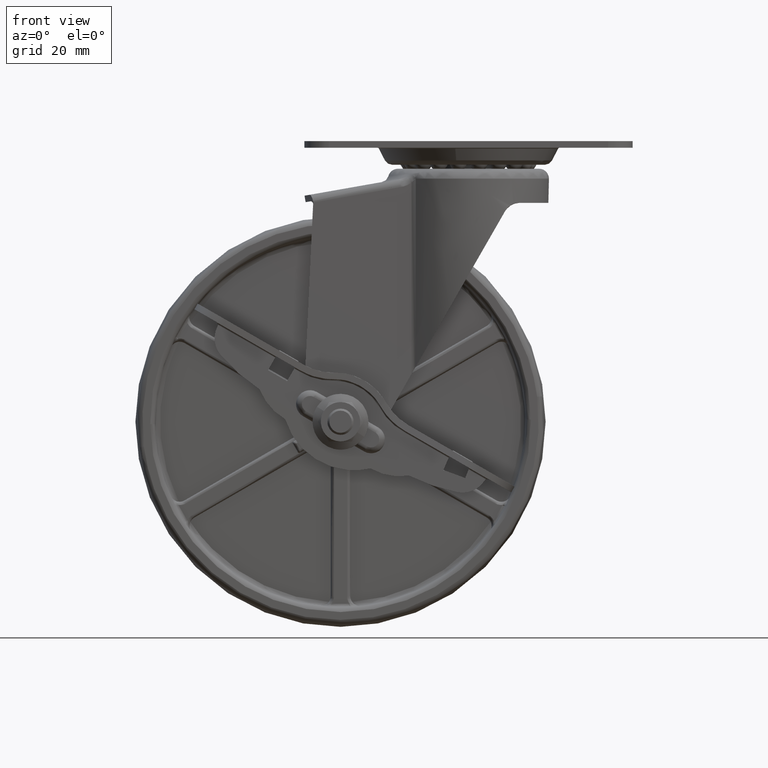
[diagram: clean part render]
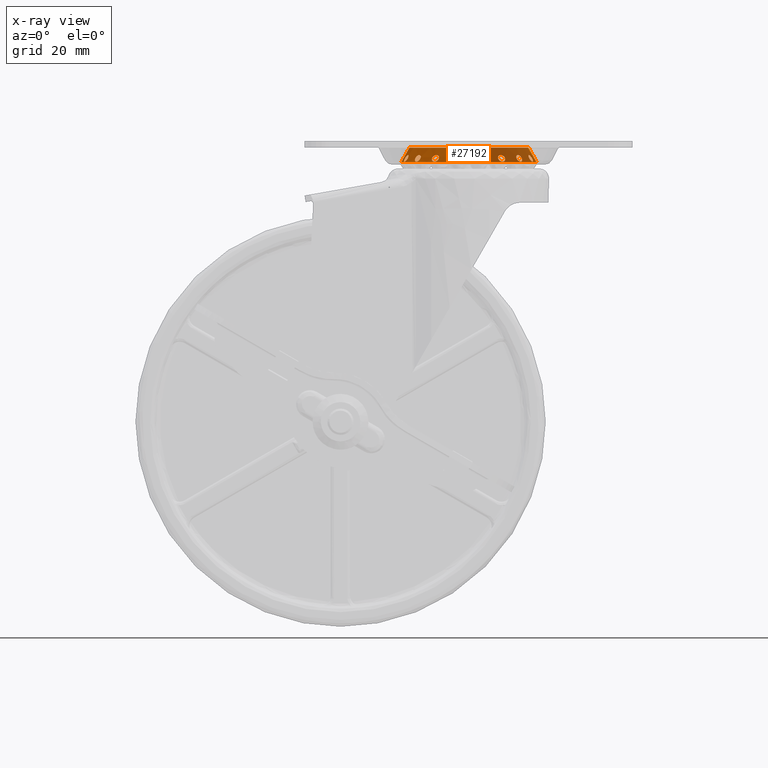
[diagram: x-ray — body ghosted, one internal face saturated and labeled with its STEP entity id]
A machine part, front view, then the same camera in x-ray: the body is ghosted and one INTERNAL B-rep face — a face not visible from any outside direction — is saturated and labeled: STEP entity #27192.
In plain terms, the highlighted face is a freeform B-spline surface patch.
Its self-contained STEP definition (entity closure, byte-faithful):
#25284=CARTESIAN_POINT('',(-19.508414431254060,7.101415014059303,-4.251616072559936));
#25285=VERTEX_POINT('',#25284);
#25286=CARTESIAN_POINT('',(-18.429718560392100,6.707868981886106,-2.262800443308880));
#25287=VERTEX_POINT('',#25286);
#25288=CARTESIAN_POINT('',(-19.508414431254060,7.101415014059303,-4.251616072559936));
#25289=CARTESIAN_POINT('',(-19.534817033345380,7.028958585022437,-4.251660267534106));
#25290=CARTESIAN_POINT('',(-19.557543879770829,6.955592512101171,-4.245926870730656));
#25291=CARTESIAN_POINT('',(-19.586018794457729,6.844156385099782,-4.228449574385698));
#25292=CARTESIAN_POINT('',(-19.594589385389600,6.806635701276648,-4.221088616762827));
#25293=CARTESIAN_POINT('',(-19.609489573876321,6.732588237964996,-4.203616285511522));
#25294=CARTESIAN_POINT('',(-19.615865558769599,6.695909399065857,-4.193492020253149));
#25295=CARTESIAN_POINT('',(-19.631831732252209,6.586900945140863,-4.158996149006859));
#25296=CARTESIAN_POINT('',(-19.638289352338539,6.515588518169490,-4.130543534218738));
#25297=CARTESIAN_POINT('',(-19.641430330646340,6.410818297692874,-4.079126626608969));
#25298=CARTESIAN_POINT('',(-19.641361386971621,6.376431333078551,-4.060583385960418));
#25299=CARTESIAN_POINT('',(-19.639029469716181,6.309899074399098,-4.021323189638095));
#25300=CARTESIAN_POINT('',(-19.634517150428710,6.245259307958023,-3.979722867195439));
#25301=CARTESIAN_POINT('',(-19.625687780226450,6.184420399583095,-3.933413044356473));
#25302=CARTESIAN_POINT('',(-19.614659939561829,6.125545516676880,-3.884664664831274));
#25303=CARTESIAN_POINT('',(-19.608015205275098,6.096980441403326,-3.858962847267940));
#25304=CARTESIAN_POINT('',(-19.584834977119979,6.015166124010696,-3.778691455185779));
#25305=CARTESIAN_POINT('',(-19.565404483035401,5.966711850363531,-3.721996691499080));
#25306=CARTESIAN_POINT('',(-19.530469103751109,5.903133689605843,-3.632141314238992));
#25307=CARTESIAN_POINT('',(-19.517851683353211,5.883468985676139,-3.601381779858024));
#25308=CARTESIAN_POINT('',(-19.490608014451400,5.847330877888201,-3.538167635133706));
#25309=CARTESIAN_POINT('',(-19.475969599905110,5.830890666441690,-3.505709504404704));
#25310=CARTESIAN_POINT('',(-19.430117625139971,5.787663616404160,-3.408176892195674));
#25311=CARTESIAN_POINT('',(-19.396657900993720,5.766424461379358,-3.342152665779968));
#25312=CARTESIAN_POINT('',(-19.342120668082408,5.746083465361668,-3.241569090297333));
#25313=CARTESIAN_POINT('',(-19.323089566967159,5.741231574621639,-3.207577682462246));
#25314=CARTESIAN_POINT('',(-19.284318418075419,5.735673574345008,-3.140464951877227));
#25315=CARTESIAN_POINT('',(-19.244773706515289,5.734177254819011,-3.074073609936941));
#25316=CARTESIAN_POINT('',(-19.203711417615690,5.740578121443830,-3.009093267481712));
#25317=CARTESIAN_POINT('',(-19.161876570310540,5.750935418559918,-2.944827433535353));
#25318=CARTESIAN_POINT('',(-19.140456526709880,5.758144726811011,-2.912885063194678));
#25319=CARTESIAN_POINT('',(-19.075859964473128,5.785501988254743,-2.819452435783073));
#25320=CARTESIAN_POINT('',(-19.032704892418561,5.811078982791687,-2.760795500931574));
#25321=CARTESIAN_POINT('',(-18.967715780902321,5.859854328667438,-2.678057435722348));
#25322=CARTESIAN_POINT('',(-18.945967002126942,5.877900142140001,-2.651309313320430));
#25323=CARTESIAN_POINT('',(-18.902535150651360,5.917382006934686,-2.599836500581567));
#25324=CARTESIAN_POINT('',(-18.881116481337671,5.938570089450036,-2.575421285987430));
#25325=CARTESIAN_POINT('',(-18.817671450476340,6.006255868929241,-2.505972659592813));
#25326=CARTESIAN_POINT('',(-18.776448750329781,6.056838117315314,-2.464702234015147));
#25327=CARTESIAN_POINT('',(-18.716059772947620,6.140767163754011,-2.410352500646386));
#25328=CARTESIAN_POINT('',(-18.696262106255080,6.169988710351036,-2.393595243191040));
#25329=CARTESIAN_POINT('',(-18.657885847626030,6.229948743303558,-2.363229864936964));
#25330=CARTESIAN_POINT('',(-18.620546414742289,6.291675470216488,-2.335847182714880));
#25331=CARTESIAN_POINT('',(-18.585192955657391,6.356837398856545,-2.314308365552163));
#25332=CARTESIAN_POINT('',(-18.550820465643628,6.423717625169511,-2.295710949249967));
#25333=CARTESIAN_POINT('',(-18.534060691317372,6.458160318643452,-2.287860960840872));
#25334=CARTESIAN_POINT('',(-18.485842634423260,6.562893930067692,-2.269073044365946));
#25335=CARTESIAN_POINT('',(-18.456408690213710,6.634538452878917,-2.262800443308878));
#25336=CARTESIAN_POINT('',(-18.429718560392100,6.707868981886106,-2.262800443308880));
#25337=B_SPLINE_CURVE_WITH_KNOTS('',3,(#25288,#25289,#25290,#25291,#25292,#25293,#25294,#25295,#25296,#25297,#25298,#25299,#25300,#25301,#25302,#25303,#25304,#25305,#25306,#25307,#25308,#25309,#25310,#25311,#25312,#25313,#25314,#25315,#25316,#25317,#25318,#25319,#25320,#25321,#25322,#25323,#25324,#25325,#25326,#25327,#25328,#25329,#25330,#25331,#25332,#25333,#25334,#25335,#25336),.UNSPECIFIED.,.F.,.U.,(4,2,2,2,2,2,1,2,2,2,2,2,2,2,1,2,2,2,2,2,2,2,1,2,2,4),(0.500000000000016,0.531250000000015,0.546875000000015,0.562500000000015,0.593750000000015,0.609375000000015,0.625000000000014,0.640625000000014,0.656250000000014,0.687500000000014,0.703125000000014,0.718750000000013,0.750000000000012,0.765625000000012,0.781250000000011,0.796875000000011,0.812500000000010,0.843750000000009,0.859375000000008,0.875000000000007,0.906250000000006,0.921875000000005,0.937500000000004,0.953125000000003,0.968750000000003,1.0),.UNSPECIFIED.);
#25338=EDGE_CURVE('',#25285,#25287,#25337,.T.);
#25340=CARTESIAN_POINT('',(-18.429718560392100,6.707868981886106,-2.262800443308880));
#25341=CARTESIAN_POINT('',(-18.403028430570490,6.781199510893305,-2.262800443308882));
#25342=CARTESIAN_POINT('',(-18.379701256965060,6.854503888347344,-2.269065123674825));
#25343=CARTESIAN_POINT('',(-18.349609660519071,6.964432834941159,-2.287520864340852));
#25344=CARTESIAN_POINT('',(-18.340401884784939,7.001071375434822,-2.295192811927499));
#25345=CARTESIAN_POINT('',(-18.323683055485279,7.074343613040446,-2.313643501330478));
#25346=CARTESIAN_POINT('',(-18.316139932974391,7.111169103289264,-2.324491894269575));
#25347=CARTESIAN_POINT('',(-18.296502466028780,7.219965918334955,-2.361332428622933));
#25348=CARTESIAN_POINT('',(-18.287332743263988,7.290221577656607,-2.391477380024524));
#25349=CARTESIAN_POINT('',(-18.279584548416729,7.392237732236417,-2.445001829829727));
#25350=CARTESIAN_POINT('',(-18.278009800570992,7.425678223197858,-2.464236952713943));
#25351=CARTESIAN_POINT('',(-18.276988578860490,7.491389579728181,-2.505601501959317));
#25352=CARTESIAN_POINT('',(-18.277559127233332,7.523686669241341,-2.527777056095975));
#25353=CARTESIAN_POINT('',(-18.282533873535609,7.616583073686686,-2.597197524312389));
#25354=CARTESIAN_POINT('',(-18.290137944436410,7.673993691725886,-2.647757941026580));
#25355=CARTESIAN_POINT('',(-18.314333923965449,7.779630166690599,-2.757529976315944));
#25356=CARTESIAN_POINT('',(-18.331197488956899,7.828132452932521,-2.817366876755668));
#25357=CARTESIAN_POINT('',(-18.373046027644701,7.910981829985860,-2.940537900346525));
#25358=CARTESIAN_POINT('',(-18.398077489385500,7.945963751383348,-3.004372161399088));
#25359=CARTESIAN_POINT('',(-18.442134435103370,7.988391222110376,-3.103589966013722));
#25360=CARTESIAN_POINT('',(-18.457939387284281,8.000824440140175,-3.137272146805697));
#25361=CARTESIAN_POINT('',(-18.490975411259122,8.021661745612343,-3.204127567590958));
#25362=CARTESIAN_POINT('',(-18.525616595255968,8.038666815324925,-3.270894165093780));
#25363=CARTESIAN_POINT('',(-18.563423359300089,8.048120741839497,-3.337484266534594));
#25364=CARTESIAN_POINT('',(-18.602833998098038,8.053737412859052,-3.403987261340836));
#25365=CARTESIAN_POINT('',(-18.623461936093289,8.054607730494519,-3.437373787720234));
#25366=CARTESIAN_POINT('',(-18.686455142572392,8.051335130132342,-3.535288616004548));
#25367=CARTESIAN_POINT('',(-18.730152296179689,8.041493449857706,-3.598047728041866));
#25368=CARTESIAN_POINT('',(-18.798082589444238,8.015551731372703,-3.688581829649988));
#25369=CARTESIAN_POINT('',(-18.821257067051452,8.004952523726129,-3.718313306301582));
#25370=CARTESIAN_POINT('',(-18.867687871793802,7.980278012570344,-3.775662232147313));
#25371=CARTESIAN_POINT('',(-18.890904260921729,7.966247794623250,-3.803246072072452));
#25372=CARTESIAN_POINT('',(-18.960523899666690,7.919266926781663,-3.882876252382034));
#25373=CARTESIAN_POINT('',(-19.007006448015169,7.881368329413801,-3.931934263790692));
#25374=CARTESIAN_POINT('',(-19.099263571024871,7.792868867541691,-4.021404219221160));
#25375=CARTESIAN_POINT('',(-19.143805033920898,7.743482574553653,-4.060642922507251));
#25376=CARTESIAN_POINT('',(-19.208257234337012,7.662123601731561,-4.111844859885599));
#25377=CARTESIAN_POINT('',(-19.229345337607018,7.633781428976073,-4.127625968327885));
#25378=CARTESIAN_POINT('',(-19.270701942528841,7.574617376565685,-4.156599068727374));
#25379=CARTESIAN_POINT('',(-19.290926229002149,7.543836570598852,-4.169748057080420));
#25380=CARTESIAN_POINT('',(-19.349162946625260,7.449631225167853,-4.204594344515787));
#25381=CARTESIAN_POINT('',(-19.385173434720858,7.383783404350428,-4.222031627630043));
#25382=CARTESIAN_POINT('',(-19.434976640805559,7.280501205846493,-4.239693603139765));
#25383=CARTESIAN_POINT('',(-19.450931910238481,7.245170878879148,-4.244165952541637));
#25384=CARTESIAN_POINT('',(-19.481087172253019,7.173642672410558,-4.250117417207433));
#25385=CARTESIAN_POINT('',(-19.495213130208452,7.137643228577571,-4.251593975072852));
#25386=CARTESIAN_POINT('',(-19.508414431254099,7.101415014059193,-4.251616072559936));
#25387=B_SPLINE_CURVE_WITH_KNOTS('',3,(#25340,#25341,#25342,#25343,#25344,#25345,#25346,#25347,#25348,#25349,#25350,#25351,#25352,#25353,#25354,#25355,#25356,#25357,#25358,#25359,#25360,#25361,#25362,#25363,#25364,#25365,#25366,#25367,#25368,#25369,#25370,#25371,#25372,#25373,#25374,#25375,#25376,#25377,#25378,#25379,#25380,#25381,#25382,#25383,#25384,#25385,#25386),.UNSPECIFIED.,.F.,.U.,(4,2,2,2,2,2,2,2,2,2,2,1,2,2,2,2,2,2,2,2,2,2,2,4),(0.0,0.031250000000001,0.046875000000002,0.062500000000002,0.093750000000004,0.109375000000005,0.125000000000005,0.156250000000007,0.187500000000008,0.218750000000009,0.234375000000010,0.250000000000011,0.265625000000012,0.281250000000013,0.312500000000015,0.328125000000016,0.343750000000016,0.375000000000017,0.406250000000017,0.421875000000017,0.437500000000017,0.468750000000017,0.484375000000016,0.500000000000016),.UNSPECIFIED.);
#25388=EDGE_CURVE('',#25287,#25285,#25387,.T.);
#25437=CARTESIAN_POINT('',(-15.903086103356699,13.345417985686741,-4.251616072559934));
#25438=VERTEX_POINT('',#25437);
#25439=CARTESIAN_POINT('',(-15.024044223686550,12.606669966886541,-2.262800443404211));
#25440=VERTEX_POINT('',#25439);
#25441=CARTESIAN_POINT('',(-15.903086103356699,13.345417985686741,-4.251616072559934));
#25442=CARTESIAN_POINT('',(-15.952677991955429,13.286361435744061,-4.251660267534305));
#25443=CARTESIAN_POINT('',(-15.999126916610980,13.225192917675820,-4.245926870731061));
#25444=CARTESIAN_POINT('',(-16.063997983948529,13.130216205846310,-4.228449574386461));
#25445=CARTESIAN_POINT('',(-16.084884534661910,13.097889610869830,-4.221088616763709));
#25446=CARTESIAN_POINT('',(-16.124211855846099,13.033403920609819,-4.203616285512632));
#25447=CARTESIAN_POINT('',(-16.142748223537922,13.001117801624380,-4.193492020254380));
#25448=CARTESIAN_POINT('',(-16.195034605977071,12.904144114810761,-4.158996149008447));
#25449=CARTESIAN_POINT('',(-16.225493070413819,12.839340989562990,-4.130543534220573));
#25450=CARTESIAN_POINT('',(-16.264278150375631,12.741963464354169,-4.079126626611246));
#25451=CARTESIAN_POINT('',(-16.275974399079271,12.709626707329310,-4.060583385962794));
#25452=CARTESIAN_POINT('',(-16.296538486291581,12.646309272130029,-4.021323189640703));
#25453=CARTESIAN_POINT('',(-16.314406235584212,12.584024557871720,-3.979722672977382));
#25454=CARTESIAN_POINT('',(-16.326917633474590,12.523834760787910,-3.933413044359588));
#25455=CARTESIAN_POINT('',(-16.336691248868942,12.464738724126590,-3.884664664834669));
#25456=CARTESIAN_POINT('',(-16.340217072231908,12.435623700706770,-3.858962847271532));
#25457=CARTESIAN_POINT('',(-16.346416927447532,12.350815285422099,-3.778691455189648));
#25458=CARTESIAN_POINT('',(-16.344730573155839,12.298637541658479,-3.721996691503140));
#25459=CARTESIAN_POINT('',(-16.333647066693182,12.226945009721151,-3.632141314243386));
#25460=CARTESIAN_POINT('',(-16.328516294708550,12.204150820615491,-3.601381779862537));
#25461=CARTESIAN_POINT('',(-16.315275580883860,12.160874223855330,-3.538167635138475));
#25462=CARTESIAN_POINT('',(-16.307142854230090,12.140418845833560,-3.505709504409528));
#25463=CARTESIAN_POINT('',(-16.278840613744631,12.084116406913591,-3.408176892200656));
#25464=CARTESIAN_POINT('',(-16.254662976716851,12.052714230016640,-3.342152665785072));
#25465=CARTESIAN_POINT('',(-16.210371771765850,12.014947113942030,-3.241569090302653));
#25466=CARTESIAN_POINT('',(-16.194147830848880,12.003878808085521,-3.207577682467625));
#25467=CARTESIAN_POINT('',(-16.159615816387401,11.985395482338030,-3.140464951882585));
#25468=CARTESIAN_POINT('',(-16.122967714162250,11.970464314005170,-3.074073609942283));
#25469=CARTESIAN_POINT('',(-16.082192558970551,11.962435031204080,-3.009093267487050));
#25470=CARTESIAN_POINT('',(-16.039338257422379,11.957859346403660,-2.944827433540694));
#25471=CARTESIAN_POINT('',(-16.016744271872771,11.957307793785629,-2.912885063200047));
#25472=CARTESIAN_POINT('',(-15.946686624531051,11.960921885014070,-2.819452435788204));
#25473=CARTESIAN_POINT('',(-15.897386274434711,11.970196494112610,-2.760795500936565));
#25474=CARTESIAN_POINT('',(-15.819634335124620,11.993802741472340,-2.678057435727129));
#25475=CARTESIAN_POINT('',(-15.793025136488140,12.003321738794430,-2.651309313325196));
#25476=CARTESIAN_POINT('',(-15.738708953093720,12.025567987729920,-2.599836500586053));
#25477=CARTESIAN_POINT('',(-15.711335236573950,12.038152656169510,-2.575421285991784));
#25478=CARTESIAN_POINT('',(-15.628566509249600,12.080057005129220,-2.505972659596773));
#25479=CARTESIAN_POINT('',(-15.572529694270390,12.113489776867610,-2.464702234018851));
#25480=CARTESIAN_POINT('',(-15.487077193355610,12.171703035775520,-2.410352500649682));
#25481=CARTESIAN_POINT('',(-15.458479114500509,12.192391106680860,-2.393595243194138));
#25482=CARTESIAN_POINT('',(-15.401909688389191,12.235609653711521,-2.363229864939707));
#25483=CARTESIAN_POINT('',(-15.345710274937760,12.280842854458150,-2.335847062739971));
#25484=CARTESIAN_POINT('',(-15.290202238064079,12.329983553665629,-2.314308365554198));
#25485=CARTESIAN_POINT('',(-15.235028278250921,12.381074324847109,-2.295710949251634));
#25486=CARTESIAN_POINT('',(-15.207499147032030,12.407707689327211,-2.287860960842345));
#25487=CARTESIAN_POINT('',(-15.126367989989530,12.489633544400700,-2.269073044366797));
#25488=CARTESIAN_POINT('',(-15.074205259767400,12.546890371928930,-2.262800443404210));
#25489=CARTESIAN_POINT('',(-15.024044223686550,12.606669966886541,-2.262800443404211));
#25490=B_SPLINE_CURVE_WITH_KNOTS('',3,(#25441,#25442,#25443,#25444,#25445,#25446,#25447,#25448,#25449,#25450,#25451,#25452,#25453,#25454,#25455,#25456,#25457,#25458,#25459,#25460,#25461,#25462,#25463,#25464,#25465,#25466,#25467,#25468,#25469,#25470,#25471,#25472,#25473,#25474,#25475,#25476,#25477,#25478,#25479,#25480,#25481,#25482,#25483,#25484,#25485,#25486,#25487,#25488,#25489),.UNSPECIFIED.,.F.,.U.,(4,2,2,2,2,2,1,2,2,2,2,2,2,2,1,2,2,2,2,2,2,2,1,2,2,4),(0.499999999999983,0.531249999999985,0.546874999999986,0.562499999999987,0.593749999999989,0.609374999999990,0.624999999999991,0.640624999999992,0.656249999999993,0.687499999999994,0.703124999999995,0.718749999999995,0.749999999999996,0.765624999999997,0.781249999999997,0.796874999999998,0.812499999999999,0.843749999999999,0.859374999999999,0.874999999999999,0.906249999999999,0.921874999999999,0.937499999999999,0.953124999999999,0.968750000000000,1.0),.UNSPECIFIED.);
#25491=EDGE_CURVE('',#25438,#25440,#25490,.T.);
#25493=CARTESIAN_POINT('',(-15.024044223686550,12.606669966886541,-2.262800443404211));
#25494=CARTESIAN_POINT('',(-14.973883187605701,12.666449561844150,-2.262800443404212));
#25495=CARTESIAN_POINT('',(-14.926891241099369,12.727354781220219,-2.269065123675116));
#25496=CARTESIAN_POINT('',(-14.861016475902749,12.820362269014510,-2.287520864340960));
#25497=CARTESIAN_POINT('',(-14.839832878120861,12.851641990376139,-2.295192811927523));
#25498=CARTESIAN_POINT('',(-14.799061736392391,12.914777194968890,-2.313643501330371));
#25499=CARTESIAN_POINT('',(-14.779378460378309,12.946801936570180,-2.324491894269438));
#25500=CARTESIAN_POINT('',(-14.723714575323299,13.042321091574250,-2.361332428622724));
#25501=CARTESIAN_POINT('',(-14.691069003835970,13.105203586312919,-2.391477380024255));
#25502=CARTESIAN_POINT('',(-14.648896502502680,13.198417375260250,-2.445001829829337));
#25503=CARTESIAN_POINT('',(-14.635979402060920,13.229302562368231,-2.464236952713508));
#25504=CARTESIAN_POINT('',(-14.612545159976751,13.290701760805730,-2.505601501958779));
#25505=CARTESIAN_POINT('',(-14.602035044888201,13.321246236530341,-2.527777056095395));
#25506=CARTESIAN_POINT('',(-14.574937335715850,13.410241765728459,-2.597197524311694));
#25507=CARTESIAN_POINT('',(-14.562447237219040,13.466790845273970,-2.647757941025793));
#25508=CARTESIAN_POINT('',(-14.549054218327180,13.574332173670490,-2.757529976314923));
#25509=CARTESIAN_POINT('',(-14.548312027017641,13.625677093058631,-2.817366876754541));
#25510=CARTESIAN_POINT('',(-14.559300634198850,13.717843084512371,-2.940537900345225));
#25511=CARTESIAN_POINT('',(-14.570857992313879,13.759276602042760,-3.004372161397682));
#25512=CARTESIAN_POINT('',(-14.597746929480129,13.814213746092500,-3.103589966012121));
#25513=CARTESIAN_POINT('',(-14.608346315403811,13.831302761337939,-3.137272146804071));
#25514=CARTESIAN_POINT('',(-14.632263245148851,13.862182409182060,-3.204127567589277));
#25515=CARTESIAN_POINT('',(-14.658999245544260,13.890009917242500,-3.270894164872975));
#25516=CARTESIAN_POINT('',(-14.691292537631909,13.911824390262900,-3.337484266532778));
#25517=CARTESIAN_POINT('',(-14.726405409463521,13.930581566903680,-3.403987261338935));
#25518=CARTESIAN_POINT('',(-14.745491664417200,13.938454568273160,-3.437373787718302));
#25519=CARTESIAN_POINT('',(-14.805805210950000,13.956924275370749,-3.535288616002607));
#25520=CARTESIAN_POINT('',(-14.850233156642091,13.962621427780350,-3.598047728039904));
#25521=CARTESIAN_POINT('',(-14.922939342224749,13.961477714988209,-3.688581829647993));
#25522=CARTESIAN_POINT('',(-14.948341370341129,13.959443855929340,-3.718313306299566));
#25523=CARTESIAN_POINT('',(-15.000411234776569,13.952137670367611,-3.775662232145351));
#25524=CARTESIAN_POINT('',(-15.027026121474490,13.946894050831830,-3.803246072070520));
#25525=CARTESIAN_POINT('',(-15.108515585417489,13.926557794825049,-3.882876252380173));
#25526=CARTESIAN_POINT('',(-15.165156976799270,13.906842730388821,-3.931934263788805));
#25527=CARTESIAN_POINT('',(-15.282118913140060,13.855234233558990,-4.021404219219496));
#25528=CARTESIAN_POINT('',(-15.340865304148499,13.824060375993961,-4.060642922505694));
#25529=CARTESIAN_POINT('',(-15.429256968818271,13.769651900422581,-4.111844859884199));
#25530=CARTESIAN_POINT('',(-15.458766897835410,13.750231525930181,-4.127625968326533));
#25531=CARTESIAN_POINT('',(-15.517864691986260,13.708780294407379,-4.156599068726138));
#25532=CARTESIAN_POINT('',(-15.547396960414350,13.686772911536851,-4.169748057079270));
#25533=CARTESIAN_POINT('',(-15.634341699969941,13.618166974105259,-4.204594344514875));
#25534=CARTESIAN_POINT('',(-15.690701771017910,13.568606575088140,-4.222031627629291));
#25535=CARTESIAN_POINT('',(-15.772826068602480,13.488586754978900,-4.239693603139269));
#25536=CARTESIAN_POINT('',(-15.799902801044309,13.460844130976110,-4.244165952541231));
#25537=CARTESIAN_POINT('',(-15.852703565665530,13.403943310215890,-4.250117417207227));
#25538=CARTESIAN_POINT('',(-15.878290159057221,13.374946260658220,-4.251593975072748));
#25539=CARTESIAN_POINT('',(-15.903086103356619,13.345417985686840,-4.251616072559934));
#25540=B_SPLINE_CURVE_WITH_KNOTS('',3,(#25493,#25494,#25495,#25496,#25497,#25498,#25499,#25500,#25501,#25502,#25503,#25504,#25505,#25506,#25507,#25508,#25509,#25510,#25511,#25512,#25513,#25514,#25515,#25516,#25517,#25518,#25519,#25520,#25521,#25522,#25523,#25524,#25525,#25526,#25527,#25528,#25529,#25530,#25531,#25532,#25533,#25534,#25535,#25536,#25537,#25538,#25539),.UNSPECIFIED.,.F.,.U.,(4,2,2,2,2,2,2,2,2,2,2,1,2,2,2,2,2,2,2,2,2,2,2,4),(0.0,0.031249999999998,0.046874999999997,0.062499999999996,0.093749999999994,0.109374999999993,0.124999999999992,0.156249999999990,0.187499999999988,0.218749999999986,0.234374999999986,0.249999999999985,0.265624999999985,0.281249999999984,0.312499999999983,0.328124999999983,0.343749999999983,0.374999999999983,0.406249999999982,0.421874999999983,0.437499999999983,0.468749999999983,0.484374999999983,0.499999999999983),.UNSPECIFIED.);
#25541=EDGE_CURVE('',#25440,#25438,#25540,.T.);
#25590=CARTESIAN_POINT('',(-10.379610886844979,17.979766590842001,-4.251616072559977));
#25591=VERTEX_POINT('',#25590);
#25592=CARTESIAN_POINT('',(-9.806248422478012,16.984920499374091,-2.262800443308870));
#25593=VERTEX_POINT('',#25592);
#25594=CARTESIAN_POINT('',(-10.379610886844979,17.979766590842001,-4.251616072559977));
#25595=CARTESIAN_POINT('',(-10.446410548287950,17.941233011497861,-4.251660267534149));
#25596=CARTESIAN_POINT('',(-10.510979125346930,17.899639874312580,-4.245926870730697));
#25597=CARTESIAN_POINT('',(-10.604421937219060,17.832578170808102,-4.228449574385741));
#25598=CARTESIAN_POINT('',(-10.635105221445160,17.809344729122049,-4.221088616762866));
#25599=CARTESIAN_POINT('',(-10.694116219982289,17.762198737866360,-4.203616285511561));
#25600=CARTESIAN_POINT('',(-10.722577210961241,17.738199521236560,-4.193492020253187));
#25601=CARTESIAN_POINT('',(-10.804877292969550,17.664957059343060,-4.158996149006895));
#25602=CARTESIAN_POINT('',(-10.855662861426319,17.614479449115869,-4.130543534218772));
#25603=CARTESIAN_POINT('',(-10.925413989991471,17.536239785853969,-4.079126626609006));
#25604=CARTESIAN_POINT('',(-10.947464690861370,17.509853526555538,-4.060583385960442));
#25605=CARTESIAN_POINT('',(-10.988444450129631,17.457387931987370,-4.021323189638118));
#25606=CARTESIAN_POINT('',(-11.026537269187390,17.404970575785011,-3.979722672974547));
#25607=CARTESIAN_POINT('',(-11.058880260485839,17.352689817718360,-3.933413044356506));
#25608=CARTESIAN_POINT('',(-11.088276489678959,17.300500481487958,-3.884664664831306));
#25609=CARTESIAN_POINT('',(-11.101547604358220,17.274347211438201,-3.858962847267965));
#25610=CARTESIAN_POINT('',(-11.136379748904700,17.196773844784190,-3.778691455185803));
#25611=CARTESIAN_POINT('',(-11.152640933620919,17.147166036863759,-3.721996691499101));
#25612=CARTESIAN_POINT('',(-11.166746134433630,17.076006311167959,-3.632141314239012));
#25613=CARTESIAN_POINT('',(-11.169720857685480,17.052831952499041,-3.601381779858038));
#25614=CARTESIAN_POINT('',(-11.172080124436690,17.007636663030780,-3.538167635133723));
#25615=CARTESIAN_POINT('',(-11.171434012535871,16.985633338912670,-3.505709504404716));
#25616=CARTESIAN_POINT('',(-11.164095174228430,16.923046416180298,-3.408176892195684));
#25617=CARTESIAN_POINT('',(-11.152115804168060,16.885268783392270,-3.342152665779979));
#25618=CARTESIAN_POINT('',(-11.123412800162120,16.834630818843419,-3.241569090297346));
#25619=CARTESIAN_POINT('',(-11.111952866157580,16.818681098907831,-3.207577682462244));
#25620=CARTESIAN_POINT('',(-11.085825056708179,16.789501809560139,-3.140464951877229));
#25621=CARTESIAN_POINT('',(-11.056494064463930,16.762936535929310,-3.074073570020421));
#25622=CARTESIAN_POINT('',(-11.020923929823260,16.741445729461692,-3.009093267481713));
#25623=CARTESIAN_POINT('',(-10.982219035260369,16.722488957862328,-2.944827433535354));
#25624=CARTESIAN_POINT('',(-10.961176275870489,16.714243069761370,-2.912885063194672));
#25625=CARTESIAN_POINT('',(-10.894107529633450,16.693678078035159,-2.819452435783067));
#25626=CARTESIAN_POINT('',(-10.844608251312280,16.685531646960062,-2.760795500931565));
#25627=CARTESIAN_POINT('',(-10.763471515584930,16.681121533982211,-2.678057435722338));
#25628=CARTESIAN_POINT('',(-10.735211359152530,16.680965583591799,-2.651309313320415));
#25629=CARTESIAN_POINT('',(-10.676562177177960,16.683292990727491,-2.599836500581551));
#25630=CARTESIAN_POINT('',(-10.646535087657320,16.685756348347908,-2.575421285987412));
#25631=CARTESIAN_POINT('',(-10.554425793921281,16.696824983862289,-2.505972659592795));
#25632=CARTESIAN_POINT('',(-10.490333731010990,16.709075793266880,-2.464702234015133));
#25633=CARTESIAN_POINT('',(-10.390124539318149,16.734551886484621,-2.410352500646369));
#25634=CARTESIAN_POINT('',(-10.356175398673139,16.744211195023940,-2.393595243191020));
#25635=CARTESIAN_POINT('',(-10.288235912744391,16.765475461523572,-2.363229864936945));
#25636=CARTESIAN_POINT('',(-10.219955072829020,16.788759435036521,-2.335847062737563));
#25637=CARTESIAN_POINT('',(-10.150987471198331,16.815951720735061,-2.314308365552142));
#25638=CARTESIAN_POINT('',(-10.081666835420110,16.845090735761719,-2.295710949249944));
#25639=CARTESIAN_POINT('',(-10.046688766820260,16.860702394425420,-2.287860960840844));
#25640=CARTESIAN_POINT('',(-9.942430124537300,16.909939025930051,-2.269073044365919));
#25641=CARTESIAN_POINT('',(-9.873830203571567,16.945902139867421,-2.262800443308870));
#25642=CARTESIAN_POINT('',(-9.806248422478014,16.984920499374098,-2.262800443308870));
#25643=B_SPLINE_CURVE_WITH_KNOTS('',3,(#25594,#25595,#25596,#25597,#25598,#25599,#25600,#25601,#25602,#25603,#25604,#25605,#25606,#25607,#25608,#25609,#25610,#25611,#25612,#25613,#25614,#25615,#25616,#25617,#25618,#25619,#25620,#25621,#25622,#25623,#25624,#25625,#25626,#25627,#25628,#25629,#25630,#25631,#25632,#25633,#25634,#25635,#25636,#25637,#25638,#25639,#25640,#25641,#25642),.UNSPECIFIED.,.F.,.U.,(4,2,2,2,2,2,1,2,2,2,2,2,2,2,1,2,2,2,2,2,2,2,1,2,2,4),(0.500000000000014,0.531250000000015,0.546875000000015,0.562500000000014,0.593750000000013,0.609375000000013,0.625000000000012,0.640625000000011,0.656250000000010,0.687500000000007,0.703125000000006,0.718750000000005,0.750000000000004,0.765625000000004,0.781250000000004,0.796875000000003,0.812500000000003,0.843750000000003,0.859375000000003,0.875000000000002,0.906250000000003,0.921875000000002,0.937500000000002,0.953125000000002,0.968750000000002,1.0),.UNSPECIFIED.);
#25644=EDGE_CURVE('',#25591,#25593,#25643,.T.);
#25646=CARTESIAN_POINT('',(-9.806248422478012,16.984920499374091,-2.262800443308870));
#25647=CARTESIAN_POINT('',(-9.738666641384455,17.023938858880769,-2.262800443308871));
#25648=CARTESIAN_POINT('',(-9.673677844107086,17.065098851723150,-2.269065123674804));
#25649=CARTESIAN_POINT('',(-9.579965379048666,17.129966805048110,-2.287520864340831));
#25650=CARTESIAN_POINT('',(-9.549361013747712,17.152114911242570,-2.295192811927471));
#25651=CARTESIAN_POINT('',(-9.489455161000354,17.197498045372981,-2.313643501330450));
#25652=CARTESIAN_POINT('',(-9.460005825064547,17.220859381854869,-2.324491894269552));
#25653=CARTESIAN_POINT('',(-9.375029407949192,17.291579857011389,-2.361332428622910));
#25654=CARTESIAN_POINT('',(-9.322845525457970,17.339504630254950,-2.391477380024505));
#25655=CARTESIAN_POINT('',(-9.251335343699257,17.412673094933929,-2.445001829829711));
#25656=CARTESIAN_POINT('',(-9.228633883610860,17.437277768806489,-2.464236952713926));
#25657=CARTESIAN_POINT('',(-9.185613136600949,17.486959159664099,-2.505601501959300));
#25658=CARTESIAN_POINT('',(-9.165290033043501,17.512066907039362,-2.527777056095961));
#25659=CARTESIAN_POINT('',(-9.109388252042395,17.586427386734890,-2.597197524312376));
#25660=CARTESIAN_POINT('',(-9.078310474360986,17.635294274218062,-2.647757941026566));
#25661=CARTESIAN_POINT('',(-9.028943852786735,17.731769384700950,-2.757529976315931));
#25662=CARTESIAN_POINT('',(-9.010685424401835,17.779763982186800,-2.817366876755661));
#25663=CARTESIAN_POINT('',(-8.989488711876140,17.870130009246381,-2.940537900346520));
#25664=CARTESIAN_POINT('',(-8.986177978408483,17.913017629201882,-3.004372161399084));
#25665=CARTESIAN_POINT('',(-8.992655704362774,17.973838216215981,-3.103589966013721));
#25666=CARTESIAN_POINT('',(-8.996771081656648,17.993521841231399,-3.137272146805701));
#25667=CARTESIAN_POINT('',(-9.008684182468553,18.030719290182251,-3.204127567590962));
#25668=CARTESIAN_POINT('',(-9.024290236454361,18.066012844848672,-3.270894164874725));
#25669=CARTESIAN_POINT('',(-9.047175015541164,18.097556700560531,-3.337484266534601));
#25670=CARTESIAN_POINT('',(-9.073754989853045,18.127191990493039,-3.403987261340845));
#25671=CARTESIAN_POINT('',(-9.088997477734743,18.141118075438168,-3.437373787720252));
#25672=CARTESIAN_POINT('',(-9.139356660476565,18.179102370735350,-3.535288616004565));
#25673=CARTESIAN_POINT('',(-9.179156732316585,18.199651195167359,-3.598047728041882));
#25674=CARTESIAN_POINT('',(-9.247869371207477,18.223443436709811,-3.688581829650005));
#25675=CARTESIAN_POINT('',(-9.272435090348385,18.230220239657552,-3.718313306301606));
#25676=CARTESIAN_POINT('',(-9.323863620356816,18.241163613496141,-3.775662232147335));
#25677=CARTESIAN_POINT('',(-9.350666856495151,18.245339050275120,-3.803246072072479));
#25678=CARTESIAN_POINT('',(-9.434197313628564,18.254100258708281,-3.882876252382062));
#25679=CARTESIAN_POINT('',(-9.494165760305492,18.254946654937669,-3.931934263790724));
#25680=CARTESIAN_POINT('',(-9.621725174280542,18.246453869527489,-4.021404219221192));
#25681=CARTESIAN_POINT('',(-9.687590811641492,18.237252474684642,-4.060642922507283));
#25682=CARTESIAN_POINT('',(-9.789260601283903,18.216356961500910,-4.111844859885630));
#25683=CARTESIAN_POINT('',(-9.823633023088638,18.208200769049402,-4.127625968327918));
#25684=CARTESIAN_POINT('',(-9.893343940303520,18.189461988690478,-4.156599068727410));
#25685=CARTESIAN_POINT('',(-9.928622163264096,18.178882444084660,-4.169748057080452));
#25686=CARTESIAN_POINT('',(-10.033788105994059,18.144150803222090,-4.204594344515819));
#25687=CARTESIAN_POINT('',(-10.103699903639979,18.116855541560010,-4.222031627630084));
#25688=CARTESIAN_POINT('',(-10.208239890410210,18.069749671116881,-4.239693603139807));
#25689=CARTESIAN_POINT('',(-10.243172232318541,18.052940919970641,-4.244165952541672));
#25690=CARTESIAN_POINT('',(-10.312249948076699,18.017530563668920,-4.250117417207470));
#25691=CARTESIAN_POINT('',(-10.346211056123630,17.999033380513989,-4.251593975072892));
#25692=CARTESIAN_POINT('',(-10.379610886845070,17.979766590841951,-4.251616072559977));
#25693=B_SPLINE_CURVE_WITH_KNOTS('',3,(#25646,#25647,#25648,#25649,#25650,#25651,#25652,#25653,#25654,#25655,#25656,#25657,#25658,#25659,#25660,#25661,#25662,#25663,#25664,#25665,#25666,#25667,#25668,#25669,#25670,#25671,#25672,#25673,#25674,#25675,#25676,#25677,#25678,#25679,#25680,#25681,#25682,#25683,#25684,#25685,#25686,#25687,#25688,#25689,#25690,#25691,#25692),.UNSPECIFIED.,.F.,.U.,(4,2,2,2,2,2,2,2,2,2,2,1,2,2,2,2,2,2,2,2,2,2,2,4),(0.0,0.031250000000000,0.046875000000001,0.062500000000001,0.093750000000002,0.109375000000003,0.125000000000003,0.156250000000004,0.187500000000004,0.218750000000005,0.234375000000005,0.250000000000005,0.265625000000006,0.281250000000006,0.312500000000007,0.328125000000007,0.343750000000008,0.375000000000010,0.406250000000011,0.421875000000011,0.437500000000012,0.468750000000013,0.484375000000013,0.500000000000014),.UNSPECIFIED.);
#25694=EDGE_CURVE('',#25593,#25591,#25693,.T.);
#25743=CARTESIAN_POINT('',(-3.604201410631641,20.445489992051250,-4.251616072559890));
#25744=VERTEX_POINT('',#25743);
#25745=CARTESIAN_POINT('',(-3.405674336606773,19.314538948736651,-2.262800443404205));
#25746=VERTEX_POINT('',#25745);
#25747=CARTESIAN_POINT('',(-3.604201410631641,20.445489992051250,-4.251616072559890));
#25748=CARTESIAN_POINT('',(-3.680151819890525,20.432127101670090,-4.251660267534263));
#25749=CARTESIAN_POINT('',(-3.755052126028917,20.415126091561952,-4.245926870731021));
#25750=CARTESIAN_POINT('',(-3.865796100254832,20.384068027550949,-4.228449574386421));
#25751=CARTESIAN_POINT('',(-3.902575261078949,20.372730035111921,-4.221088616763670));
#25752=CARTESIAN_POINT('',(-3.974152339636066,20.348610245206899,-4.203616285512592));
#25753=CARTESIAN_POINT('',(-4.009105138350709,20.335792590649120,-4.193492020254337));
#25754=CARTESIAN_POINT('',(-4.111492315418419,20.295115475524021,-4.158996149008404));
#25755=CARTESIAN_POINT('',(-4.176479498824369,20.265051725081229,-4.130543534220529));
#25756=CARTESIAN_POINT('',(-4.268783660471206,20.215386781850491,-4.079126626611200));
#25757=CARTESIAN_POINT('',(-4.298529173548976,20.198133592569629,-4.060583385962756));
#25758=CARTESIAN_POINT('',(-4.354981841109004,20.162847963647259,-4.021323189640664));
#25759=CARTESIAN_POINT('',(-4.408705173763775,20.126620272256709,-3.979722672977344));
#25760=CARTESIAN_POINT('',(-4.456978716388377,20.088554384211989,-3.933413044359552));
#25761=CARTESIAN_POINT('',(-4.502451940297877,20.049566552594570,-3.884664664834632));
#25762=CARTESIAN_POINT('',(-4.523867654002487,20.029529506264190,-3.858962847271507));
#25763=CARTESIAN_POINT('',(-4.583130817180694,19.968547681120100,-3.778691455189623));
#25764=CARTESIAN_POINT('',(-4.615378202039062,19.927493242811249,-3.721996691503117));
#25765=CARTESIAN_POINT('',(-4.652970814739445,19.865449236481460,-3.632141314243366));
#25766=CARTESIAN_POINT('',(-4.663692237701679,19.844689877921819,-3.601381779862511));
#25767=CARTESIAN_POINT('',(-4.681366922640178,19.803027114666680,-3.538167635138450));
#25768=CARTESIAN_POINT('',(-4.688285356123497,19.782129770075201,-3.505709504409518));
#25769=CARTESIAN_POINT('',(-4.702795092204678,19.720807270096088,-3.408176892200643));
#25770=CARTESIAN_POINT('',(-4.704458877938349,19.681210721469391,-3.342152665785059));
#25771=CARTESIAN_POINT('',(-4.694806080772950,19.623809594307211,-3.241569090302638));
#25772=CARTESIAN_POINT('',(-4.689492390852800,19.604902231909389,-3.207577682467625));
#25773=CARTESIAN_POINT('',(-4.674920185841162,19.568546431896809,-3.140464951882585));
#25774=CARTESIAN_POINT('',(-4.656443927564041,19.533551450125390,-3.074073570025761));
#25775=CARTESIAN_POINT('',(-4.630369223230535,19.501190995325000,-3.009093267487050));
#25776=CARTESIAN_POINT('',(-4.600482117161350,19.470139603353250,-2.944827433540693));
#25777=CARTESIAN_POINT('',(-4.583528651272124,19.455193955570412,-2.912885063200059));
#25778=CARTESIAN_POINT('',(-4.527538286766101,19.412930322397841,-2.819452435788215));
#25779=CARTESIAN_POINT('',(-4.483810423717758,19.388345430964730,-2.760795500936577));
#25780=CARTESIAN_POINT('',(-4.409075179353502,19.356450882359919,-2.678057435727140));
#25781=CARTESIAN_POINT('',(-4.382572657066906,19.346638794175352,-2.651309313325216));
#25782=CARTESIAN_POINT('',(-4.326664433428449,19.328766639861239,-2.599836500586074));
#25783=CARTESIAN_POINT('',(-4.297605681055982,19.320811569377891,-2.575421285991803));
#25784=CARTESIAN_POINT('',(-4.207265561121846,19.299709450647381,-2.505972659596790));
#25785=CARTESIAN_POINT('',(-4.142848698966018,19.289300669300712,-2.464702234018871));
#25786=CARTESIAN_POINT('',(-4.039969523944159,19.278966803998209,-2.410352500649700));
#25787=CARTESIAN_POINT('',(-4.004764088907070,19.276432295005211,-2.393595243194165));
#25788=CARTESIAN_POINT('',(-3.933649047844110,19.273177496606280,-2.363229864939735));
#25789=CARTESIAN_POINT('',(-3.861522458476692,19.271703852044499,-2.335847062740002));
#25790=CARTESIAN_POINT('',(-3.787413802699269,19.273667933262949,-2.314308365554226));
#25791=CARTESIAN_POINT('',(-3.712307582694734,19.277340596875931,-2.295710949251661));
#25792=CARTESIAN_POINT('',(-3.674099448008548,19.280047553284540,-2.287860960842371));
#25793=CARTESIAN_POINT('',(-3.559288451438122,19.290656296804890,-2.269073044366822));
#25794=CARTESIAN_POINT('',(-3.482525502508438,19.300988014689288,-2.262800443404204));
#25795=CARTESIAN_POINT('',(-3.405674336606773,19.314538948736651,-2.262800443404205));
#25796=B_SPLINE_CURVE_WITH_KNOTS('',3,(#25747,#25748,#25749,#25750,#25751,#25752,#25753,#25754,#25755,#25756,#25757,#25758,#25759,#25760,#25761,#25762,#25763,#25764,#25765,#25766,#25767,#25768,#25769,#25770,#25771,#25772,#25773,#25774,#25775,#25776,#25777,#25778,#25779,#25780,#25781,#25782,#25783,#25784,#25785,#25786,#25787,#25788,#25789,#25790,#25791,#25792,#25793,#25794,#25795),.UNSPECIFIED.,.F.,.U.,(4,2,2,2,2,2,1,2,2,2,2,2,2,2,1,2,2,2,2,2,2,2,1,2,2,4),(0.499999999999991,0.531249999999990,0.546874999999990,0.562499999999989,0.593749999999988,0.609374999999988,0.624999999999988,0.640624999999987,0.656249999999987,0.687499999999987,0.703124999999987,0.718749999999987,0.749999999999987,0.765624999999988,0.781249999999989,0.796874999999989,0.812499999999990,0.843749999999992,0.859374999999992,0.874999999999993,0.906249999999995,0.921874999999995,0.937499999999996,0.953124999999997,0.968749999999998,1.0),.UNSPECIFIED.);
#25797=EDGE_CURVE('',#25744,#25746,#25796,.T.);
#25799=CARTESIAN_POINT('',(-3.405674336606773,19.314538948736651,-2.262800443404205));
#25800=CARTESIAN_POINT('',(-3.328823170705113,19.328089882784020,-2.262800443404205));
#25801=CARTESIAN_POINT('',(-3.253676130832437,19.344540146674721,-2.269065123675146));
#25802=CARTESIAN_POINT('',(-3.143429072249552,19.373444533008591,-2.287520864340989));
#25803=CARTESIAN_POINT('',(-3.107095277557768,19.383789635557200,-2.295192811927549));
#25804=CARTESIAN_POINT('',(-3.035280243749816,19.405946823464820,-2.313643501330398));
#25805=CARTESIAN_POINT('',(-2.999616872432140,19.417827032870910,-2.324491894269461));
#25806=CARTESIAN_POINT('',(-2.895577333278999,19.455218895152829,-2.361332428622747));
#25807=CARTESIAN_POINT('',(-2.830149286164479,19.482405511953651,-2.391477380024276));
#25808=CARTESIAN_POINT('',(-2.737926607278411,19.526703455672290,-2.445001829829358));
#25809=CARTESIAN_POINT('',(-2.708178918667932,19.542059929514000,-2.464236952713526));
#25810=CARTESIAN_POINT('',(-2.650760603740333,19.574031203834910,-2.505601501958797));
#25811=CARTESIAN_POINT('',(-2.623075777940073,19.590673857976430,-2.527777056095408));
#25812=CARTESIAN_POINT('',(-2.545112504921296,19.641430316874199,-2.597197524311706));
#25813=CARTESIAN_POINT('',(-2.499195486702769,19.676720944466020,-2.647757941025804));
#25814=CARTESIAN_POINT('',(-2.419809605581562,19.750493514889829,-2.757529976314932));
#25815=CARTESIAN_POINT('',(-2.386237176050110,19.789348933691709,-2.817366876754537));
#25816=CARTESIAN_POINT('',(-2.335411780177948,19.867015519833188,-2.940537900345222));
#25817=CARTESIAN_POINT('',(-2.317632278444846,19.906184362293271,-3.004372161397681));
#25818=CARTESIAN_POINT('',(-2.302917483835687,19.965552531861519,-3.103589966012125));
#25819=CARTESIAN_POINT('',(-2.300052477261488,19.985456630970681,-3.137272146804054));
#25820=CARTESIAN_POINT('',(-2.298524853363453,20.024485319708980,-3.204127567589262));
#25821=CARTESIAN_POINT('',(-2.301118640507886,20.062987997411259,-3.270894164872959));
#25822=CARTESIAN_POINT('',(-2.311834664492286,20.100456581278049,-3.337484266532763));
#25823=CARTESIAN_POINT('',(-2.326675804103451,20.137395531166192,-3.403987261338922));
#25824=CARTESIAN_POINT('',(-2.336236055919307,20.155695008315490,-3.437373787718271));
#25825=CARTESIAN_POINT('',(-2.370566814208682,20.208612425211161,-3.535288616002578));
#25826=CARTESIAN_POINT('',(-2.400938536145918,20.241534430170852,-3.598047728039878));
#25827=CARTESIAN_POINT('',(-2.457369870003721,20.287392930582008,-3.688581829647966));
#25828=CARTESIAN_POINT('',(-2.478136291889109,20.302163013085980,-3.718313306299528));
#25829=CARTESIAN_POINT('',(-2.522720447746987,20.330036013933189,-3.775662232145314));
#25830=CARTESIAN_POINT('',(-2.546479167473682,20.343126887728602,-3.803246072070480));
#25831=CARTESIAN_POINT('',(-2.621975611888532,20.379928829563319,-3.882876252380134));
#25832=CARTESIAN_POINT('',(-2.678038034150840,20.401234598581830,-3.931934263788756));
#25833=CARTESIAN_POINT('',(-2.800809377857900,20.436881879852429,-4.021404219219449));
#25834=CARTESIAN_POINT('',(-2.865849893632136,20.450762771748170,-4.060642922505649));
#25835=CARTESIAN_POINT('',(-2.968534931129666,20.465900528227429,-4.111844859884156));
#25836=CARTESIAN_POINT('',(-3.003624024369277,20.469992274999200,-4.127625968326498));
#25837=CARTESIAN_POINT('',(-3.075539899208224,20.476226119270692,-4.156599068726103));
#25838=CARTESIAN_POINT('',(-3.112309002361056,20.478350462146629,-4.169748057079226));
#25839=CARTESIAN_POINT('',(-3.223011583487991,20.481682266325940,-4.204594344514830));
#25840=CARTESIAN_POINT('',(-3.298042713147405,20.479944353410819,-4.222031627629245));
#25841=CARTESIAN_POINT('',(-3.412389323852676,20.471434095818331,-4.239693603139227));
#25842=CARTESIAN_POINT('',(-3.450963919246738,20.467586600987850,-4.244165952541182));
#25843=CARTESIAN_POINT('',(-3.527986794142928,20.457937720716082,-4.250117417207180));
#25844=CARTESIAN_POINT('',(-3.566226206002104,20.452171437241851,-4.251593975072704));
#25845=CARTESIAN_POINT('',(-3.604201410631578,20.445489992051261,-4.251616072559890));
#25846=B_SPLINE_CURVE_WITH_KNOTS('',3,(#25799,#25800,#25801,#25802,#25803,#25804,#25805,#25806,#25807,#25808,#25809,#25810,#25811,#25812,#25813,#25814,#25815,#25816,#25817,#25818,#25819,#25820,#25821,#25822,#25823,#25824,#25825,#25826,#25827,#25828,#25829,#25830,#25831,#25832,#25833,#25834,#25835,#25836,#25837,#25838,#25839,#25840,#25841,#25842,#25843,#25844,#25845),.UNSPECIFIED.,.F.,.U.,(4,2,2,2,2,2,2,2,2,2,2,1,2,2,2,2,2,2,2,2,2,2,2,4),(0.0,0.031250000000000,0.046874999999999,0.062499999999999,0.093749999999998,0.109374999999997,0.124999999999997,0.156249999999997,0.187499999999996,0.218749999999996,0.234374999999996,0.249999999999996,0.265624999999996,0.281249999999995,0.312499999999995,0.328124999999995,0.343749999999995,0.374999999999994,0.406249999999994,0.421874999999994,0.437499999999993,0.468749999999992,0.484374999999992,0.499999999999991),.UNSPECIFIED.);
#25847=EDGE_CURVE('',#25746,#25744,#25846,.T.);
#25896=CARTESIAN_POINT('',(3.605927948044241,20.445185556922208,-4.251616072559892));
#25897=VERTEX_POINT('',#25896);
#25898=CARTESIAN_POINT('',(3.405674336625052,19.314538948840202,-2.262800443308874));
#25899=VERTEX_POINT('',#25898);
#25900=CARTESIAN_POINT('',(3.605927948044241,20.445185556922208,-4.251616072559892));
#25901=CARTESIAN_POINT('',(3.529987531234509,20.458605117298909,-4.251660267534063));
#25902=CARTESIAN_POINT('',(3.453789578347692,20.468246806994848,-4.245926870730616));
#25903=CARTESIAN_POINT('',(3.339101799466469,20.476938443364809,-4.228449574385659));
#25904=CARTESIAN_POINT('',(3.300662871642301,20.478863429391719,-4.221088616762791));
#25905=CARTESIAN_POINT('',(3.225152965104484,20.480679043469859,-4.203616285511488));
#25906=CARTESIAN_POINT('',(3.187924182027577,20.480588949292059,-4.193492020253114));
#25907=CARTESIAN_POINT('',(3.077799314528792,20.477383441349321,-4.158996149006824));
#25908=CARTESIAN_POINT('',(3.006448929601210,20.471359682687758,-4.130543534218704));
#25909=CARTESIAN_POINT('',(2.902724979031797,20.456259784617821,-4.079126626608939));
#25910=CARTESIAN_POINT('',(2.868872401620553,20.450220654611641,-4.060583385960389));
#25911=CARTESIAN_POINT('',(2.803755850629488,20.436370958943339,-4.021323189638069));
#25912=CARTESIAN_POINT('',(2.740881663506737,20.420702614277658,-3.979722867195417));
#25913=CARTESIAN_POINT('',(2.682500238899871,20.401442816477719,-3.933413044356453));
#25914=CARTESIAN_POINT('',(2.626434762191153,20.380358997365200,-3.884664664831254));
#25915=CARTESIAN_POINT('',(2.599457500596366,20.368854938256760,-3.858962847267935));
#25916=CARTESIAN_POINT('',(2.522911330897740,20.331819962730709,-3.778691455185772));
#25917=CARTESIAN_POINT('',(2.478567256432394,20.304270665192359,-3.721996691499073));
#25918=CARTESIAN_POINT('',(2.422021455744783,20.258825801063779,-3.632141314238985));
#25919=CARTESIAN_POINT('',(2.404846494913072,20.242985327631150,-3.601381779858010));
#25920=CARTESIAN_POINT('',(2.373988219642079,20.209880234714451,-3.538167635133693));
#25921=CARTESIAN_POINT('',(2.360339705958301,20.192609397819322,-3.505709504404713));
#25922=CARTESIAN_POINT('',(2.325731483801888,20.139947719114751,-3.408176892195681));
#25923=CARTESIAN_POINT('',(2.310625219389263,20.103308182796638,-3.342152665779975));
#25924=CARTESIAN_POINT('',(2.300063539917091,20.046067316107351,-3.241569090297339));
#25925=CARTESIAN_POINT('',(2.298590076327210,20.026482818195440,-3.207577682462266));
#25926=CARTESIAN_POINT('',(2.299849053914644,19.987335553554171,-3.140464951877249));
#25927=CARTESIAN_POINT('',(2.305242333943222,19.948131781860219,-3.074073609936959));
#25928=CARTESIAN_POINT('',(2.318676348659607,19.908804820220350,-3.009093267481728));
#25929=CARTESIAN_POINT('',(2.336140840157291,19.869404064017932,-2.944827433535370));
#25930=CARTESIAN_POINT('',(2.346960174353614,19.849561322250189,-2.912885063194710));
#25931=CARTESIAN_POINT('',(2.385118892840541,19.790696665537158,-2.819452435783102));
#25932=CARTESIAN_POINT('',(2.417801114978632,19.752638614487559,-2.760795500931603));
#25933=CARTESIAN_POINT('',(2.477120694535908,19.697106583531401,-2.678057435722373));
#25934=CARTESIAN_POINT('',(2.498668987353916,19.678821840198879,-2.651309313320466));
#25935=CARTESIAN_POINT('',(2.545092895768535,19.642905770010540,-2.599836500581600));
#25936=CARTESIAN_POINT('',(2.569678396595492,19.625491770328271,-2.575421285987466));
#25937=CARTESIAN_POINT('',(2.647352990986378,19.574764124306459,-2.505972659592846));
#25938=CARTESIAN_POINT('',(2.704325028120733,19.542951204856578,-2.464702234015180));
#25939=CARTESIAN_POINT('',(2.797465439630063,19.498053797701541,-2.410352500646416));
#25940=CARTESIAN_POINT('',(2.829680874017025,19.483631170366358,-2.393595243191077));
#25941=CARTESIAN_POINT('',(2.895393946716140,19.456249883791919,-2.363229864936999));
#25942=CARTESIAN_POINT('',(2.962666830423446,19.430196454436722,-2.335847182714914));
#25943=CARTESIAN_POINT('',(3.032977866693712,19.406695343995729,-2.314308365552195));
#25944=CARTESIAN_POINT('',(3.104810752342694,19.384458678761028,-2.295710949249997));
#25945=CARTESIAN_POINT('',(3.141640488180308,19.373934434021471,-2.287860960840899));
#25946=CARTESIAN_POINT('',(3.253155938422172,19.344635718521261,-2.269073044365971));
#25947=CARTESIAN_POINT('',(3.328823170721063,19.328089882887969,-2.262800443308875));
#25948=CARTESIAN_POINT('',(3.405674336625052,19.314538948840202,-2.262800443308874));
#25949=B_SPLINE_CURVE_WITH_KNOTS('',3,(#25900,#25901,#25902,#25903,#25904,#25905,#25906,#25907,#25908,#25909,#25910,#25911,#25912,#25913,#25914,#25915,#25916,#25917,#25918,#25919,#25920,#25921,#25922,#25923,#25924,#25925,#25926,#25927,#25928,#25929,#25930,#25931,#25932,#25933,#25934,#25935,#25936,#25937,#25938,#25939,#25940,#25941,#25942,#25943,#25944,#25945,#25946,#25947,#25948),.UNSPECIFIED.,.F.,.U.,(4,2,2,2,2,2,1,2,2,2,2,2,2,2,1,2,2,2,2,2,2,2,1,2,2,4),(0.499999999999991,0.531249999999991,0.546874999999991,0.562499999999991,0.593749999999990,0.609374999999990,0.624999999999990,0.640624999999990,0.656249999999990,0.687499999999990,0.703124999999990,0.718749999999991,0.749999999999992,0.765624999999993,0.781249999999994,0.796874999999995,0.812499999999996,0.843749999999996,0.859374999999997,0.874999999999997,0.906249999999998,0.921874999999998,0.937499999999998,0.953124999999999,0.968749999999999,1.0),.UNSPECIFIED.);
#25950=EDGE_CURVE('',#25897,#25899,#25949,.T.);
#25952=CARTESIAN_POINT('',(3.405674336625052,19.314538948840202,-2.262800443308874));
#25953=CARTESIAN_POINT('',(3.482525502529036,19.300988014792420,-2.262800443308874));
#25954=CARTESIAN_POINT('',(3.558766942962205,19.290744404929828,-2.269065123674848));
#25955=CARTESIAN_POINT('',(3.672251172734192,19.280198928698169,-2.287520864340873));
#25956=CARTESIAN_POINT('',(3.709932004948001,19.277493255556291,-2.295192811927517));
#25957=CARTESIAN_POINT('',(3.784994266863182,19.273752013374502,-2.313643501330497));
#25958=CARTESIAN_POINT('',(3.822570144646618,19.272718167117251,-2.324491894269588));
#25959=CARTESIAN_POINT('',(3.933124101955750,19.272271406088340,-2.361332428622944));
#25960=CARTESIAN_POINT('',(4.003904725596514,19.275440759228601,-2.391477380024538));
#25961=CARTESIAN_POINT('',(4.105716485474641,19.285525196206539,-2.445001829829739));
#25962=CARTESIAN_POINT('',(4.138922392331700,19.289781252634750,-2.464236952713954));
#25963=CARTESIAN_POINT('',(4.203812778992734,19.300186202890220,-2.505601501959328));
#25964=CARTESIAN_POINT('',(4.235520128459795,19.306356414089159,-2.527777056095972));
#25965=CARTESIAN_POINT('',(4.326141372154779,19.327386874160670,-2.597197524312384));
#25966=CARTESIAN_POINT('',(4.381359360850238,19.344844671339459,-2.647757941026575));
#25967=CARTESIAN_POINT('',(4.481189392644286,19.387016640944150,-2.757529976315937));
#25968=CARTESIAN_POINT('',(4.526026492844405,19.412046344109761,-2.817366876755653));
#25969=CARTESIAN_POINT('',(4.600350279217611,19.467645752807879,-2.940537900346508));
#25970=CARTESIAN_POINT('',(4.630454078909497,19.498371477301411,-3.004372161399071));
#25971=CARTESIAN_POINT('',(4.664586572684693,19.549126551993162,-3.103589966013704));
#25972=CARTESIAN_POINT('',(4.674086401050992,19.566850397090331,-3.137272146805664));
#25973=CARTESIAN_POINT('',(4.688870495671281,19.603002889752180,-3.204127567590925));
#25974=CARTESIAN_POINT('',(4.699601824377804,19.640070699320479,-3.270894164874685));
#25975=CARTESIAN_POINT('',(4.702347066139687,19.678944747150499,-3.337484266534566));
#25976=CARTESIAN_POINT('',(4.701034821697912,19.718731974476970,-3.403987261340808));
#25977=CARTESIAN_POINT('',(4.698309913410997,19.739197656814731,-3.437373787720187));
#25978=CARTESIAN_POINT('',(4.684148375691324,19.800665573853319,-3.535288616004503));
#25979=CARTESIAN_POINT('',(4.666868281561055,19.841989879665491,-3.598047728041820));
#25980=CARTESIAN_POINT('',(4.629524704436800,19.904383426996350,-3.688581829649946));
#25981=CARTESIAN_POINT('',(4.615062316765801,19.925365299123388,-3.718313306301527));
#25982=CARTESIAN_POINT('',(4.582700042246681,19.966806031715230,-3.775662232147259));
#25983=CARTESIAN_POINT('',(4.564851491171861,19.987233389946581,-3.803246072072403));
#25984=CARTESIAN_POINT('',(4.506495044880334,20.047637207858621,-3.882876252381988));
#25985=CARTESIAN_POINT('',(4.461100602550155,20.086832559482890,-3.931934263790633));
#25986=CARTESIAN_POINT('',(4.357925365073666,20.162320319214849,-4.021404219221104));
#25987=CARTESIAN_POINT('',(4.301554816984003,20.197609257426269,-4.060642922507203));
#25988=CARTESIAN_POINT('',(4.210239862622816,20.246954446727351,-4.111844859885552));
#25989=CARTESIAN_POINT('',(4.178666360452714,20.262800607673849,-4.127625968327836));
#25990=CARTESIAN_POINT('',(4.113219643860171,20.293255182954681,-4.156599068727328));
#25991=CARTESIAN_POINT('',(4.079394557009385,20.307827186209469,-4.169748057080369));
#25992=CARTESIAN_POINT('',(3.976507702565185,20.348820570674128,-4.204594344515740));
#25993=CARTESIAN_POINT('',(3.905407102470530,20.372849624452130,-4.222031627629997));
#25994=CARTESIAN_POINT('',(3.795045756657124,20.403961442373578,-4.239693603139723));
#25995=CARTESIAN_POINT('',(3.757481573282039,20.413539268518239,-4.244165952541591));
#25996=CARTESIAN_POINT('',(3.681803634696820,20.430815661639230,-4.250117417207391));
#25997=CARTESIAN_POINT('',(3.643898156449206,20.438475776733839,-4.251593975072807));
#25998=CARTESIAN_POINT('',(3.605927948044307,20.445185556922191,-4.251616072559892));
#25999=B_SPLINE_CURVE_WITH_KNOTS('',3,(#25952,#25953,#25954,#25955,#25956,#25957,#25958,#25959,#25960,#25961,#25962,#25963,#25964,#25965,#25966,#25967,#25968,#25969,#25970,#25971,#25972,#25973,#25974,#25975,#25976,#25977,#25978,#25979,#25980,#25981,#25982,#25983,#25984,#25985,#25986,#25987,#25988,#25989,#25990,#25991,#25992,#25993,#25994,#25995,#25996,#25997,#25998),.UNSPECIFIED.,.F.,.U.,(4,2,2,2,2,2,2,2,2,2,2,1,2,2,2,2,2,2,2,2,2,2,2,4),(0.0,0.031249999999999,0.046874999999998,0.062499999999998,0.093749999999997,0.109374999999997,0.124999999999996,0.156249999999995,0.187499999999995,0.218749999999994,0.234374999999994,0.249999999999994,0.265624999999993,0.281249999999993,0.312499999999993,0.328124999999993,0.343749999999993,0.374999999999993,0.406249999999993,0.421874999999993,0.437499999999992,0.468749999999992,0.484374999999991,0.499999999999991),.UNSPECIFIED.);
#26000=EDGE_CURVE('',#25899,#25897,#25999,.T.);
#26049=CARTESIAN_POINT('',(10.381129178364700,17.978890004824319,-4.251616072559885));
#26050=VERTEX_POINT('',#26049);
#26051=CARTESIAN_POINT('',(9.806248422425483,16.984920499283049,-2.262800443404204));
#26052=VERTEX_POINT('',#26051);
#26053=CARTESIAN_POINT('',(10.381129178364700,17.978890004824319,-4.251616072559885));
#26054=CARTESIAN_POINT('',(10.314358289032761,18.017473418926031,-4.251660267534258));
#26055=CARTESIAN_POINT('',(10.246053287077860,18.052594878352760,-4.245926870731018));
#26056=CARTESIAN_POINT('',(10.141254742286071,18.099987875482970,-4.228449574386413));
#26057=CARTESIAN_POINT('',(10.105792349455641,18.114943658251342,-4.221088616763666));
#26058=CARTESIAN_POINT('',(10.035457224073090,18.142475686459470,-4.203616285512591));
#26059=CARTESIAN_POINT('',(10.000442797311299,18.155124019349309,-4.193492020254334));
#26060=CARTESIAN_POINT('',(9.895862923671723,18.189776750155509,-4.158996149008400));
#26061=CARTESIAN_POINT('',(9.826755246664316,18.208519537471279,-4.130543534220521));
#26062=CARTESIAN_POINT('',(9.724122146413489,18.229805955120629,-4.079126626611190));
#26063=CARTESIAN_POINT('',(9.690245625115225,18.235709292596098,-4.060583385962757));
#26064=CARTESIAN_POINT('',(9.624319207760337,18.244966007879530,-4.021323189640664));
#26065=CARTESIAN_POINT('',(9.559877908594878,18.251746818508671,-3.979722867198251));
#26066=CARTESIAN_POINT('',(9.498430075896822,18.253616151850050,-3.933413044359552));
#26067=CARTESIAN_POINT('',(9.438534670318017,18.252979364991781,-3.884664664834630));
#26068=CARTESIAN_POINT('',(9.409249716723306,18.251395852415790,-3.858962847271499));
#26069=CARTESIAN_POINT('',(9.324653138270286,18.242774691134692,-3.778691455189613));
#26070=CARTESIAN_POINT('',(9.273560924026835,18.232053386234579,-3.721996691503116));
#26071=CARTESIAN_POINT('',(9.204882193441286,18.208688985616359,-3.632141314243361));
#26072=CARTESIAN_POINT('',(9.183325248491565,18.199677992187361,-3.601381779862503));
#26073=CARTESIAN_POINT('',(9.143005346304840,18.179123532394360,-3.538167635138440));
#26074=CARTESIAN_POINT('',(9.124272964601106,18.167562321015641,-3.505709504409516));
#26075=CARTESIAN_POINT('',(9.073740518723414,18.129913239241269,-3.408176892200640));
#26076=CARTESIAN_POINT('',(9.047013814063995,18.100649984053881,-3.342152665785059));
#26077=CARTESIAN_POINT('',(9.017511552371214,18.050473471145789,-3.241569090302636));
#26078=CARTESIAN_POINT('',(9.009428656725834,18.032574017204510,-3.207577682467625));
#26079=CARTESIAN_POINT('',(8.997222555610666,17.995357025802448,-3.140464951882587));
#26080=CARTESIAN_POINT('',(8.988881849909600,17.956673004585490,-3.074073570025759));
#26081=CARTESIAN_POINT('',(8.988055332880755,17.915122961137030,-3.009093267487048));
#26082=CARTESIAN_POINT('',(8.990990734382997,17.872125153395309,-2.944827433540691));
#26083=CARTESIAN_POINT('',(8.994370965505496,17.849778645147619,-2.912885063200061));
#26084=CARTESIAN_POINT('',(9.010095533359873,17.781412911243439,-2.819452435788218));
#26085=CARTESIAN_POINT('',(9.027790156258840,17.734472063210880,-2.760795500936577));
#26086=CARTESIAN_POINT('',(9.064539254249493,17.662000532402129,-2.678057435727140));
#26087=CARTESIAN_POINT('',(9.078534275465588,17.637448543821691,-2.651309313325216));
#26088=CARTESIAN_POINT('',(9.109874460156961,17.587820565888411,-2.599836500586074));
#26089=CARTESIAN_POINT('',(9.127021335194984,17.563048022372069,-2.575421285991807));
#26090=CARTESIAN_POINT('',(9.182661701603117,17.488813351829251,-2.505972659596793));
#26091=CARTESIAN_POINT('',(9.225317245219173,17.439433401870339,-2.464702234018870));
#26092=CARTESIAN_POINT('',(9.297484784980719,17.365387742780602,-2.410352500649700));
#26093=CARTESIAN_POINT('',(9.322824561881125,17.340816578815009,-2.393595243194166));
#26094=CARTESIAN_POINT('',(9.375209699826732,17.292611391330428,-2.363229864939735));
#26095=CARTESIAN_POINT('',(9.429514734582982,17.245120494691619,-2.335847182717298));
#26096=CARTESIAN_POINT('',(9.487547643364310,17.198988883927370,-2.314308365554226));
#26097=CARTESIAN_POINT('',(9.547443088507437,17.153524959850259,-2.295710949251661));
#26098=CARTESIAN_POINT('',(9.578452215805143,17.131038893199310,-2.287860960842373));
#26099=CARTESIAN_POINT('',(9.673221710626098,17.065366576170319,-2.269073044366824));
#26100=CARTESIAN_POINT('',(9.738666641333971,17.023938858788551,-2.262800443404204));
#26101=CARTESIAN_POINT('',(9.806248422425483,16.984920499283049,-2.262800443404204));
#26102=B_SPLINE_CURVE_WITH_KNOTS('',3,(#26053,#26054,#26055,#26056,#26057,#26058,#26059,#26060,#26061,#26062,#26063,#26064,#26065,#26066,#26067,#26068,#26069,#26070,#26071,#26072,#26073,#26074,#26075,#26076,#26077,#26078,#26079,#26080,#26081,#26082,#26083,#26084,#26085,#26086,#26087,#26088,#26089,#26090,#26091,#26092,#26093,#26094,#26095,#26096,#26097,#26098,#26099,#26100,#26101),.UNSPECIFIED.,.F.,.U.,(4,2,2,2,2,2,1,2,2,2,2,2,2,2,1,2,2,2,2,2,2,2,1,2,2,4),(0.499999999999985,0.531249999999985,0.546874999999986,0.562499999999986,0.593749999999988,0.609374999999989,0.624999999999989,0.640624999999990,0.656249999999991,0.687499999999992,0.703124999999992,0.718749999999993,0.749999999999994,0.765624999999995,0.781249999999995,0.796874999999996,0.812499999999996,0.843749999999997,0.859374999999998,0.874999999999998,0.906250000000000,0.921875000000000,0.937500000000000,0.953125000000000,0.968750000000000,1.0),.UNSPECIFIED.);
#26103=EDGE_CURVE('',#26050,#26052,#26102,.T.);
#26105=CARTESIAN_POINT('',(9.806248422425483,16.984920499283049,-2.262800443404204));
#26106=CARTESIAN_POINT('',(9.873830203516995,16.945902139777559,-2.262800443404205));
#26107=CARTESIAN_POINT('',(9.941970201633302,16.910200186884069,-2.269065123675144));
#26108=CARTESIAN_POINT('',(10.045003729631940,16.861476788155439,-2.287520864340987));
#26109=CARTESIAN_POINT('',(10.079486734892180,16.846046683435521,-2.295192811927548));
#26110=CARTESIAN_POINT('',(10.148742608325691,16.816858260186329,-2.313643501330398));
#26111=CARTESIAN_POINT('',(10.183698787153199,16.803035055382299,-2.324491894269460));
#26112=CARTESIAN_POINT('',(10.287432723764050,16.764803557016101,-2.361332428622745));
#26113=CARTESIAN_POINT('',(10.355028736109110,16.743573375732371,-2.391477380024275));
#26114=CARTESIAN_POINT('',(10.454149576156260,16.718227974039561,-2.445001829829356));
#26115=CARTESIAN_POINT('',(10.486808578825880,16.710870269836281,-2.464236952713525));
#26116=CARTESIAN_POINT('',(10.551344298908800,16.698453905464710,-2.505601501958796));
#26117=CARTESIAN_POINT('',(10.583249797746280,16.693407455187831,-2.527777056095404));
#26118=CARTESIAN_POINT('',(10.675598752700720,16.682175332571781,-2.597197524311702));
#26119=CARTESIAN_POINT('',(10.733457607505700,16.679694631348060,-2.647757941025799));
#26120=CARTESIAN_POINT('',(10.841690814803860,16.685179438207069,-2.757529976314927));
#26121=CARTESIAN_POINT('',(10.892384569663459,16.693364474135400,-2.817366876754536));
#26122=CARTESIAN_POINT('',(10.981242200999050,16.720190596141070,-2.940537900345217));
#26123=CARTESIAN_POINT('',(11.020039336122210,16.738767226830571,-3.004372161397672));
#26124=CARTESIAN_POINT('',(11.069472646572439,16.774787395572631,-3.103589966012114));
#26125=CARTESIAN_POINT('',(11.084461477227450,16.788193229362928,-3.137272146804054));
#26126=CARTESIAN_POINT('',(11.110718862569010,16.817109001779201,-3.204127567589259));
#26127=CARTESIAN_POINT('',(11.133480950507170,16.848271018316840,-3.270894164872954));
#26128=CARTESIAN_POINT('',(11.149356341343649,16.883861746221829,-3.337484266532759));
#26129=CARTESIAN_POINT('',(11.161731268117901,16.921698324173960,-3.403987261338916));
#26130=CARTESIAN_POINT('',(11.166170367514850,16.941861748368868,-3.437373787718267));
#26131=CARTESIAN_POINT('',(11.173886140816370,17.004466227585571,-3.535288616002576));
#26132=CARTESIAN_POINT('',(11.171781908872530,17.049208513087368,-3.598047728039873));
#26133=CARTESIAN_POINT('',(11.158030275016070,17.120611524698990,-3.688581829647964));
#26134=CARTESIAN_POINT('',(11.151616298954901,17.145274463011020,-3.718313306299523));
#26135=CARTESIAN_POINT('',(11.135379273698179,17.195284563396850,-3.775662232145308));
#26136=CARTESIAN_POINT('',(11.125593689951600,17.220584565185732,-3.803246072070478));
#26137=CARTESIAN_POINT('',(11.091415890456110,17.297304667269440,-3.882876252380128));
#26138=CARTESIAN_POINT('',(11.062164667754219,17.349662063631680,-3.931934263788751));
#26139=CARTESIAN_POINT('',(10.991029992852940,17.455885363920800,-4.021404219219447));
#26140=CARTESIAN_POINT('',(10.950128532488471,17.508325981690380,-4.060642922505648));
#26141=CARTESIAN_POINT('',(10.881197592425339,17.585926845726210,-4.111844859884156));
#26142=CARTESIAN_POINT('',(10.856947911661930,17.611616139972920,-4.127625968326494));
#26143=CARTESIAN_POINT('',(10.805864193227940,17.662618175022612,-4.156599068726098));
#26144=CARTESIAN_POINT('',(10.779062927358630,17.687880240003938,-4.169748057079217));
#26145=CARTESIAN_POINT('',(10.696401472691781,17.761590797589779,-4.204594344514824));
#26146=CARTESIAN_POINT('',(10.637807183866681,17.808488559544369,-4.222031627629241));
#26147=CARTESIAN_POINT('',(10.544742310010720,17.875469908577131,-4.239693603139224));
#26148=CARTESIAN_POINT('',(10.512719333558190,17.897317828510289,-4.244165952541180));
#26149=CARTESIAN_POINT('',(10.447514207564870,17.939435707041479,-4.250117417207179));
#26150=CARTESIAN_POINT('',(10.414514623030829,17.959598297773368,-4.251593975072699));
#26151=CARTESIAN_POINT('',(10.381129178364811,17.978890004824262,-4.251616072559885));
#26152=B_SPLINE_CURVE_WITH_KNOTS('',3,(#26105,#26106,#26107,#26108,#26109,#26110,#26111,#26112,#26113,#26114,#26115,#26116,#26117,#26118,#26119,#26120,#26121,#26122,#26123,#26124,#26125,#26126,#26127,#26128,#26129,#26130,#26131,#26132,#26133,#26134,#26135,#26136,#26137,#26138,#26139,#26140,#26141,#26142,#26143,#26144,#26145,#26146,#26147,#26148,#26149,#26150,#26151),.UNSPECIFIED.,.F.,.U.,(4,2,2,2,2,2,2,2,2,2,2,1,2,2,2,2,2,2,2,2,2,2,2,4),(0.0,0.031249999999999,0.046874999999998,0.062499999999998,0.093749999999997,0.109374999999996,0.124999999999995,0.156249999999994,0.187499999999993,0.218749999999991,0.234374999999991,0.249999999999990,0.265624999999989,0.281249999999989,0.312499999999988,0.328124999999987,0.343749999999986,0.374999999999985,0.406249999999984,0.421874999999984,0.437499999999984,0.468749999999984,0.484374999999984,0.499999999999985),.UNSPECIFIED.);
#26153=EDGE_CURVE('',#26052,#26050,#26152,.T.);
#26202=CARTESIAN_POINT('',(15.904213020618579,13.344074977991321,-4.251616072559907));
#26203=VERTEX_POINT('',#26202);
#26204=CARTESIAN_POINT('',(15.024044223767101,12.606669966954099,-2.262800443308875));
#26205=VERTEX_POINT('',#26204);
#26206=CARTESIAN_POINT('',(15.904213020618579,13.344074977991321,-4.251616072559907));
#26207=CARTESIAN_POINT('',(15.854665213450840,13.403168516646820,-4.251660267534078));
#26208=CARTESIAN_POINT('',(15.802491753737851,13.459533579459800,-4.245926870730635));
#26209=CARTESIAN_POINT('',(15.720222694198750,13.539911642449940,-4.228449574385675));
#26210=CARTESIAN_POINT('',(15.692014124306500,13.566094333833940,-4.221088616762796));
#26211=CARTESIAN_POINT('',(15.635337234236170,13.616022007240440,-4.203616285511490));
#26212=CARTESIAN_POINT('',(15.606760420414821,13.639883191581740,-4.193492020253126));
#26213=CARTESIAN_POINT('',(15.520339416829820,13.708214530381410,-4.158996149006836));
#26214=CARTESIAN_POINT('',(15.461809853510250,13.749463206909850,-4.130543534218702));
#26215=CARTESIAN_POINT('',(15.372646670171310,13.804568484155460,-4.079126626608935));
#26216=CARTESIAN_POINT('',(15.342832213418919,13.821702259488861,-4.060583385960389));
#26217=CARTESIAN_POINT('',(15.284047628603620,13.852948889245850,-4.021323189638063));
#26218=CARTESIAN_POINT('',(15.225811861211550,13.881360814405349,-3.979722672974505));
#26219=CARTESIAN_POINT('',(15.168709063834889,13.904133984626350,-3.933413044356452));
#26220=CARTESIAN_POINT('',(15.112207999260960,13.924021035915009,-3.884664664831253));
#26221=CARTESIAN_POINT('',(15.084147551269711,13.932549064858080,-3.858962847267924));
#26222=CARTESIAN_POINT('',(15.001704159936841,13.953381557106541,-3.778691455185760));
#26223=CARTESIAN_POINT('',(14.950026280994180,13.960781392444799,-3.721996691499063));
#26224=CARTESIAN_POINT('',(14.877498289009990,13.962315546872610,-3.632141314238973));
#26225=CARTESIAN_POINT('',(14.854159445650010,13.961220892242640,-3.601381779857999));
#26226=CARTESIAN_POINT('',(14.809241091810060,13.955696236775349,-3.538167635133680));
#26227=CARTESIAN_POINT('',(14.787684243780660,13.951239103630391,-3.505709504404696));
#26228=CARTESIAN_POINT('',(14.727322532934920,13.933143653688861,-3.408176892195663));
#26229=CARTESIAN_POINT('',(14.692199023055400,13.914786260086990,-3.342152665779957));
#26230=CARTESIAN_POINT('',(14.647314587310140,13.877726128942539,-3.241569090297323));
#26231=CARTESIAN_POINT('',(14.633597176115270,13.863670657284739,-3.207577682462245));
#26232=CARTESIAN_POINT('',(14.609398232235611,13.832872857548921,-3.140464951877227));
#26233=CARTESIAN_POINT('',(14.588329818155451,13.799374457628019,-3.074073570020419));
#26234=CARTESIAN_POINT('',(14.573342194387370,13.760612873878509,-3.009093267481708));
#26235=CARTESIAN_POINT('',(14.561394453151880,13.719204184790771,-2.944827433535349));
#26236=CARTESIAN_POINT('',(14.556927875440710,13.697049228756880,-2.912885063194686));
#26237=CARTESIAN_POINT('',(14.548321677710581,13.627428334140850,-2.819452435783079));
#26238=CARTESIAN_POINT('',(14.548894468704740,13.577266448170970,-2.760795500931580));
#26239=CARTESIAN_POINT('',(14.558640601553400,13.496596553690660,-2.678057435722353));
#26240=CARTESIAN_POINT('',(14.563394345064900,13.468738652033609,-2.651309313320442));
#26241=CARTESIAN_POINT('',(14.575870717228090,13.411384632925030,-2.599836500581577));
#26242=CARTESIAN_POINT('',(14.583510800287019,13.382241479926440,-2.575421285987439));
#26243=CARTESIAN_POINT('',(14.610405889360299,13.293453581717030,-2.505972659592822));
#26244=CARTESIAN_POINT('',(14.633600051369900,13.232462551984501,-2.464702234015156));
#26245=CARTESIAN_POINT('',(14.676090249010119,13.138199640243620,-2.410352500646394));
#26246=CARTESIAN_POINT('',(14.691498017354739,13.106443584653711,-2.393595243191056));
#26247=CARTESIAN_POINT('',(14.724236799788850,13.043228753302500,-2.363229864936981));
#26248=CARTESIAN_POINT('',(14.759023880846200,12.980028472341029,-2.335847062737599));
#26249=CARTESIAN_POINT('',(14.797779152965481,12.916830534406611,-2.314308365552177));
#26250=CARTESIAN_POINT('',(14.838512882956470,12.853622971706880,-2.295710949249980));
#26251=CARTESIAN_POINT('',(14.859961243316530,12.821887234641670,-2.287860960840888));
#26252=CARTESIAN_POINT('',(14.926554182992961,12.727762366738130,-2.269073044365963));
#26253=CARTESIAN_POINT('',(14.973883187684731,12.666449561913520,-2.262800443308875));
#26254=CARTESIAN_POINT('',(15.024044223767101,12.606669966954099,-2.262800443308875));
#26255=B_SPLINE_CURVE_WITH_KNOTS('',3,(#26206,#26207,#26208,#26209,#26210,#26211,#26212,#26213,#26214,#26215,#26216,#26217,#26218,#26219,#26220,#26221,#26222,#26223,#26224,#26225,#26226,#26227,#26228,#26229,#26230,#26231,#26232,#26233,#26234,#26235,#26236,#26237,#26238,#26239,#26240,#26241,#26242,#26243,#26244,#26245,#26246,#26247,#26248,#26249,#26250,#26251,#26252,#26253,#26254),.UNSPECIFIED.,.F.,.U.,(4,2,2,2,2,2,1,2,2,2,2,2,2,2,1,2,2,2,2,2,2,2,1,2,2,4),(0.500000000000009,0.531250000000008,0.546875000000008,0.562500000000008,0.593750000000007,0.609375000000006,0.625000000000005,0.640625000000005,0.656250000000004,0.687500000000003,0.703125000000003,0.718750000000003,0.750000000000004,0.765625000000004,0.781250000000004,0.796875000000004,0.812500000000004,0.843750000000003,0.859375000000003,0.875000000000003,0.906250000000002,0.921875000000002,0.937500000000001,0.953125000000001,0.968750000000000,1.0),.UNSPECIFIED.);
#26256=EDGE_CURVE('',#26203,#26205,#26255,.T.);
#26258=CARTESIAN_POINT('',(15.024044223767101,12.606669966954099,-2.262800443308875));
#26259=CARTESIAN_POINT('',(15.074205259849469,12.546890371994690,-2.262800443308875));
#26260=CARTESIAN_POINT('',(15.126025126130539,12.490036258326860,-2.269065123674839));
#26261=CARTESIAN_POINT('',(15.206180588269049,12.409011698067300,-2.287520864340865));
#26262=CARTESIAN_POINT('',(15.233306607227080,12.382718260122351,-2.295192811927509));
#26263=CARTESIAN_POINT('',(15.288402811735860,12.331603210424500,-2.313643501330487));
#26264=CARTESIAN_POINT('',(15.316523060542700,12.306657929581821,-2.324491894269585));
#26265=CARTESIAN_POINT('',(15.400925132750290,12.235252976818090,-2.361332428622941));
#26266=CARTESIAN_POINT('',(15.457183457100079,12.192183934297301,-2.391477380024535));
#26267=CARTESIAN_POINT('',(15.541657941138970,12.134465723436200,-2.445001829829737));
#26268=CARTESIAN_POINT('',(15.569830881903730,12.116381706316510,-2.464236952713951));
#26269=CARTESIAN_POINT('',(15.626227975120880,12.082641624107151,-2.505601501959325));
#26270=CARTESIAN_POINT('',(15.654483349293979,12.066987188735540,-2.527777056095976));
#26271=CARTESIAN_POINT('',(15.737421368615021,12.024847243188040,-2.597197524312387));
#26272=CARTESIAN_POINT('',(15.790942457734330,12.002727252740691,-2.647757941026579));
#26273=CARTESIAN_POINT('',(15.894524318384530,11.970863348199920,-2.757529976315942));
#26274=CARTESIAN_POINT('',(15.944960312907380,11.961216480759941,-2.817366876755661));
#26275=CARTESIAN_POINT('',(16.037634247467189,11.956033689848161,-2.940537900346516));
#26276=CARTESIAN_POINT('',(16.080445210941001,11.960220610910801,-3.004372161399076));
#26277=CARTESIAN_POINT('',(16.139216951267869,11.977161309752111,-3.103589966013710));
#26278=CARTESIAN_POINT('',(16.157886910022910,11.984632190831491,-3.137272146805678));
#26279=CARTESIAN_POINT('',(16.192450557895651,12.002823574097640,-3.204127567590938));
#26280=CARTESIAN_POINT('',(16.224497961327302,12.024321198508000,-3.270894164874699));
#26281=CARTESIAN_POINT('',(16.251588694807499,12.052335839439611,-3.337484266534576));
#26282=CARTESIAN_POINT('',(16.276158193994100,12.083658118308220,-3.403987261340817));
#26283=CARTESIAN_POINT('',(16.287225880173391,12.101087277822050,-3.437373787720205));
#26284=CARTESIAN_POINT('',(16.315888328362870,12.157277295079879,-3.535288616004519));
#26285=CARTESIAN_POINT('',(16.329213760032761,12.200040980314190,-3.598047728041836));
#26286=CARTESIAN_POINT('',(16.340712719439200,12.271841199210330,-3.688581829649961));
#26287=CARTESIAN_POINT('',(16.343120775160891,12.297210489360880,-3.718313306301544));
#26288=CARTESIAN_POINT('',(16.344967424045191,12.349758001363799,-3.775662232147277));
#26289=CARTESIAN_POINT('',(16.344425093446340,12.376879093106281,-3.803246072072423));
#26290=CARTESIAN_POINT('',(16.338548287776170,12.460661902782499,-3.882876252382008));
#26291=CARTESIAN_POINT('',(16.328968413862029,12.519866269168840,-3.931934263790652));
#26292=CARTESIAN_POINT('',(16.298454193164389,12.644013012311371,-4.021404219221123));
#26293=CARTESIAN_POINT('',(16.277955140286021,12.707280197195070,-4.060642922507219));
#26294=CARTESIAN_POINT('',(16.239722303204339,12.803776926496271,-4.111844859885566));
#26295=CARTESIAN_POINT('',(16.225721313234640,12.836210846023469,-4.127625968327851));
#26296=CARTESIAN_POINT('',(16.195162043317321,12.901608742705250,-4.156599068727341));
#26297=CARTESIAN_POINT('',(16.178617226637751,12.934513891547949,-4.169748057080384));
#26298=CARTESIAN_POINT('',(16.126151363133769,13.032051041158089,-4.204594344515751));
#26299=CARTESIAN_POINT('',(16.087130721569832,13.096160949060261,-4.222031627630012));
#26300=CARTESIAN_POINT('',(16.022587316949060,13.190932889971499,-4.239693603139737));
#26301=CARTESIAN_POINT('',(15.999967990987800,13.222415722108281,-4.244165952541603));
#26302=CARTESIAN_POINT('',(15.953100378106150,13.284295048304960,-4.250117417207401));
#26303=CARTESIAN_POINT('',(15.928986924202380,13.314528208663649,-4.251593975072821));
#26304=CARTESIAN_POINT('',(15.904213020618540,13.344074977991371,-4.251616072559908));
#26305=B_SPLINE_CURVE_WITH_KNOTS('',3,(#26258,#26259,#26260,#26261,#26262,#26263,#26264,#26265,#26266,#26267,#26268,#26269,#26270,#26271,#26272,#26273,#26274,#26275,#26276,#26277,#26278,#26279,#26280,#26281,#26282,#26283,#26284,#26285,#26286,#26287,#26288,#26289,#26290,#26291,#26292,#26293,#26294,#26295,#26296,#26297,#26298,#26299,#26300,#26301,#26302,#26303,#26304),.UNSPECIFIED.,.F.,.U.,(4,2,2,2,2,2,2,2,2,2,2,1,2,2,2,2,2,2,2,2,2,2,2,4),(0.0,0.031250000000000,0.046875000000000,0.062500000000000,0.093750000000001,0.109375000000001,0.125000000000001,0.156250000000002,0.187500000000004,0.218750000000005,0.234375000000005,0.250000000000005,0.265625000000006,0.281250000000006,0.312500000000007,0.328125000000007,0.343750000000007,0.375000000000007,0.406250000000007,0.421875000000008,0.437500000000008,0.468750000000009,0.484375000000009,0.500000000000009),.UNSPECIFIED.);
#26306=EDGE_CURVE('',#26205,#26203,#26305,.T.);
#26355=CARTESIAN_POINT('',(19.509014051404868,7.099767571234672,-4.251616072559918));
#26356=VERTEX_POINT('',#26355);
#26357=CARTESIAN_POINT('',(18.429718560293349,6.707868981850138,-2.262800443404216));
#26358=VERTEX_POINT('',#26357);
#26359=CARTESIAN_POINT('',(19.509014051404868,7.099767571234670,-4.251616072559917));
#26360=CARTESIAN_POINT('',(19.482665523193958,7.172243681554279,-4.251660267534291));
#26361=CARTESIAN_POINT('',(19.452916494962800,7.243053889318574,-4.245926870731058));
#26362=CARTESIAN_POINT('',(19.403099783419311,7.346722237518268,-4.228449574386456));
#26363=CARTESIAN_POINT('',(19.385547406308511,7.380973818521715,-4.221088616763701));
#26364=CARTESIAN_POINT('',(19.349364820954850,7.447275122860012,-4.203616285512621));
#26365=CARTESIAN_POINT('',(19.330672405569771,7.479471147667741,-4.193492020254370));
#26366=CARTESIAN_POINT('',(19.272833920510120,7.573239326538833,-4.158996149008438));
#26367=CARTESIAN_POINT('',(19.231942000019298,7.632018693125219,-4.130543534220565));
#26368=CARTESIAN_POINT('',(19.167003129411700,7.714296320264366,-4.079126626611236));
#26369=CARTESIAN_POINT('',(19.144846800703991,7.740593947283127,-4.060583385962790));
#26370=CARTESIAN_POINT('',(19.100294336925110,7.790061686814266,-4.021323189640698));
#26371=CARTESIAN_POINT('',(19.055288066756280,7.836677968739273,-3.979722672977368));
#26372=CARTESIAN_POINT('',(19.009417872378240,7.877608055691125,-3.933413044359591));
#26373=CARTESIAN_POINT('',(18.963126011063739,7.915620273240108,-3.884664664834673));
#26374=CARTESIAN_POINT('',(18.939674572831880,7.933231237551603,-3.858962847271531));
#26375=CARTESIAN_POINT('',(18.869328258348460,7.981004677310449,-3.778691455189644));
#26376=CARTESIAN_POINT('',(18.823297829591159,8.005633123535874,-3.721996691503144));
#26377=CARTESIAN_POINT('',(18.755668522440491,8.031880791344875,-3.632141314243391));
#26378=CARTESIAN_POINT('',(18.733362789624021,8.038834507017992,-3.601381779862543));
#26379=CARTESIAN_POINT('',(18.689263800528021,8.049006010861648,-3.538167635138481));
#26380=CARTESIAN_POINT('',(18.667482560190280,8.052190551988330,-3.505709504409537));
#26381=CARTESIAN_POINT('',(18.604572097547830,8.055831312203889,-3.408176892200663));
#26382=CARTESIAN_POINT('',(18.565288196107058,8.050593952782839,-3.342152665785081));
#26383=CARTESIAN_POINT('',(18.510435311683260,8.031120202168358,-3.241569090302658));
#26384=CARTESIAN_POINT('',(18.492737907176188,8.022604010113016,-3.207577682467636));
#26385=CARTESIAN_POINT('',(18.459464870301709,8.001940071219268,-3.140464951882597));
#26386=CARTESIAN_POINT('',(18.428210048104699,7.977667467858217,-3.074073609942292));
#26387=CARTESIAN_POINT('',(18.400868907628912,7.946369789019509,-3.009093267487060));
#26388=CARTESIAN_POINT('',(18.375479097577941,7.911544717617562,-2.944827433540703));
#26389=CARTESIAN_POINT('',(18.363704446224428,7.892253528467872,-2.912885063200058));
#26390=CARTESIAN_POINT('',(18.331805517368981,7.829774780526363,-2.819452435788216));
#26391=CARTESIAN_POINT('',(18.315187389410319,7.782442120378205,-2.760795500936577));
#26392=CARTESIAN_POINT('',(18.296755029656811,7.703303842062292,-2.678057435727140));
#26393=CARTESIAN_POINT('',(18.291694123838070,7.675500101407701,-2.651309313325211));
#26394=CARTESIAN_POINT('',(18.283801848857909,7.617337782283783,-2.599836500586069));
#26395=CARTESIAN_POINT('',(18.281013633164889,7.587339114161873,-2.575421285991796));
#26396=CARTESIAN_POINT('',(18.275919500230870,7.494707119180221,-2.505972659596784));
#26397=CARTESIAN_POINT('',(18.276854722385650,7.429461427991861,-2.464702234018864));
#26398=CARTESIAN_POINT('',(18.284542632979591,7.326350761928803,-2.410352500649692));
#26399=CARTESIAN_POINT('',(18.288159988511349,7.291240063688181,-2.393595243194148));
#26400=CARTESIAN_POINT('',(18.297303635098888,7.220640230082949,-2.363229864939717));
#26401=CARTESIAN_POINT('',(18.308377145274982,7.149353489129147,-2.335847182717283));
#26402=CARTESIAN_POINT('',(18.323180104750801,7.076711790332363,-2.314308365554205));
#26403=CARTESIAN_POINT('',(18.339839030586329,7.003384353916038,-2.295710949251641));
#26404=CARTESIAN_POINT('',(18.349139635204910,6.966226744696313,-2.287860960842353));
#26405=CARTESIAN_POINT('',(18.379523928404051,6.855002174122350,-2.269073044366805));
#26406=CARTESIAN_POINT('',(18.403028430472538,6.781199510855115,-2.262800443404216));
#26407=CARTESIAN_POINT('',(18.429718560293349,6.707868981850137,-2.262800443404216));
#26408=B_SPLINE_CURVE_WITH_KNOTS('',3,(#26359,#26360,#26361,#26362,#26363,#26364,#26365,#26366,#26367,#26368,#26369,#26370,#26371,#26372,#26373,#26374,#26375,#26376,#26377,#26378,#26379,#26380,#26381,#26382,#26383,#26384,#26385,#26386,#26387,#26388,#26389,#26390,#26391,#26392,#26393,#26394,#26395,#26396,#26397,#26398,#26399,#26400,#26401,#26402,#26403,#26404,#26405,#26406,#26407),.UNSPECIFIED.,.F.,.U.,(4,2,2,2,2,2,1,2,2,2,2,2,2,2,1,2,2,2,2,2,2,2,1,2,2,4),(0.500000000000000,0.531249999999999,0.546874999999999,0.562499999999999,0.593749999999997,0.609374999999997,0.624999999999997,0.640624999999997,0.656249999999997,0.687499999999997,0.703124999999997,0.718749999999997,0.749999999999996,0.765624999999996,0.781249999999997,0.796874999999997,0.812499999999997,0.843749999999997,0.859374999999997,0.874999999999998,0.906249999999998,0.921874999999998,0.937499999999999,0.953124999999999,0.968749999999999,1.0),.UNSPECIFIED.);
#26409=EDGE_CURVE('',#26356,#26358,#26408,.T.);
#26411=CARTESIAN_POINT('',(18.429718560293349,6.707868981850138,-2.262800443404216));
#26412=CARTESIAN_POINT('',(18.456408690114149,6.634538452845165,-2.262800443404215));
#26413=CARTESIAN_POINT('',(18.485658184063730,6.563389623709377,-2.269065123675123));
#26414=CARTESIAN_POINT('',(18.533267648637459,6.459836659683620,-2.287520864340966));
#26415=CARTESIAN_POINT('',(18.549764883068971,6.425851265180141,-2.295192811927526));
#26416=CARTESIAN_POINT('',(18.584056003255199,6.358974818405618,-2.313643501330374));
#26417=CARTESIAN_POINT('',(18.601948605024500,6.325916230547077,-2.324491894269438));
#26418=CARTESIAN_POINT('',(18.656838677278540,6.229950314514070,-2.361332428622724));
#26419=CARTESIAN_POINT('',(18.694973729431901,6.170237172915638,-2.391477380024255));
#26420=CARTESIAN_POINT('',(18.754612987976639,6.087107820946216,-2.445001829829335));
#26421=CARTESIAN_POINT('',(18.774901794391909,6.060478690266429,-2.464236952713502));
#26422=CARTESIAN_POINT('',(18.816357938968700,6.009484442084347,-2.505601501958773));
#26423=CARTESIAN_POINT('',(18.837555173347219,5.985110177558658,-2.527777056095390));
#26424=CARTESIAN_POINT('',(18.901078707869839,5.917145108431980,-2.597197524311687));
#26425=CARTESIAN_POINT('',(18.943806598068480,5.878053826065213,-2.647757941025783));
#26426=CARTESIAN_POINT('',(19.030243610970679,5.812684467273245,-2.757529976314913));
#26427=CARTESIAN_POINT('',(19.074338519861300,5.786369251050648,-2.817366876754531));
#26428=CARTESIAN_POINT('',(19.159650913415820,5.749802668294906,-2.940537900345213));
#26429=CARTESIAN_POINT('',(19.201312071222802,5.739094875257965,-3.004372161397669));
#26430=CARTESIAN_POINT('',(19.262333502164370,5.734912805899827,-3.103589966012110));
#26431=CARTESIAN_POINT('',(19.282432716454419,5.735547635751537,-3.137272146804057));
#26432=CARTESIAN_POINT('',(19.321133740819860,5.740820480569203,-3.204127567589262));
#26433=CARTESIAN_POINT('',(19.358601069921910,5.750060782076990,-3.270894164872963));
#26434=CARTESIAN_POINT('',(19.393639603771589,5.767120356886533,-3.337484266532762));
#26435=CARTESIAN_POINT('',(19.427440231161579,5.788150407572148,-3.403987261338920));
#26436=CARTESIAN_POINT('',(19.443801577828420,5.800743088540392,-3.437373787718283));
#26437=CARTESIAN_POINT('',(19.489953586641789,5.843741298481331,-3.535288616002590));
#26438=CARTESIAN_POINT('',(19.517101438203792,5.879368451883837,-3.598047728039889));
#26439=CARTESIAN_POINT('',(19.552464046662489,5.942905712006755,-3.688581829647977));
#26440=CARTESIAN_POINT('',(19.563403687107979,5.965921443192628,-3.718313306299550));
#26441=CARTESIAN_POINT('',(19.583111277024461,6.014668361346193,-3.775662232145333));
#26442=CARTESIAN_POINT('',(19.591877612647661,6.040339339113324,-3.803246072070503));
#26443=CARTESIAN_POINT('',(19.615010630299420,6.121079413032123,-3.882876252380153));
#26444=CARTESIAN_POINT('',(19.626257579351300,6.179989829092560,-3.931934263788788));
#26445=CARTESIAN_POINT('',(19.640044278215939,6.307086085654416,-4.021404219219479));
#26446=CARTESIAN_POINT('',(19.642420121134879,6.373548881430886,-4.060642922505680));
#26447=CARTESIAN_POINT('',(19.639496831443751,6.477302546303389,-4.111844859884184));
#26448=CARTESIAN_POINT('',(19.637433258290919,6.512569081742315,-4.127625968326527));
#26449=CARTESIAN_POINT('',(19.631084335849440,6.584474888545971,-4.156599068726131));
#26450=CARTESIAN_POINT('',(19.626791517426788,6.621054274671347,-4.169748057079258));
#26451=CARTESIAN_POINT('',(19.610849402538388,6.730653596567697,-4.204594344514863));
#26452=CARTESIAN_POINT('',(19.596108873491861,6.804243049362896,-4.222031627629273));
#26453=CARTESIAN_POINT('',(19.567871825263278,6.915374687393698,-4.239693603139254));
#26454=CARTESIAN_POINT('',(19.557384374330141,6.952695137541203,-4.244165952541219));
#26455=CARTESIAN_POINT('',(19.534507200366210,7.026872351422538,-4.250117417207216));
#26456=CARTESIAN_POINT('',(19.522188315510331,7.063529516074866,-4.251593975072731));
#26457=CARTESIAN_POINT('',(19.509014051404868,7.099767571234670,-4.251616072559917));
#26458=B_SPLINE_CURVE_WITH_KNOTS('',3,(#26411,#26412,#26413,#26414,#26415,#26416,#26417,#26418,#26419,#26420,#26421,#26422,#26423,#26424,#26425,#26426,#26427,#26428,#26429,#26430,#26431,#26432,#26433,#26434,#26435,#26436,#26437,#26438,#26439,#26440,#26441,#26442,#26443,#26444,#26445,#26446,#26447,#26448,#26449,#26450,#26451,#26452,#26453,#26454,#26455,#26456,#26457),.UNSPECIFIED.,.F.,.U.,(4,2,2,2,2,2,2,2,2,2,2,1,2,2,2,2,2,2,2,2,2,2,2,4),(0.0,0.031249999999998,0.046874999999998,0.062499999999997,0.093749999999996,0.109374999999996,0.124999999999995,0.156249999999995,0.187499999999995,0.218749999999994,0.234374999999995,0.249999999999995,0.265624999999995,0.281249999999996,0.312499999999996,0.328124999999997,0.343749999999997,0.374999999999998,0.406249999999999,0.421874999999999,0.437500000000000,0.468750000000000,0.484375000000000,0.500000000000000),.UNSPECIFIED.);
#26459=EDGE_CURVE('',#26358,#26356,#26458,.T.);
#26508=CARTESIAN_POINT('',(20.760740065206381,-0.000876586015644,-4.251616072559938));
#26509=VERTEX_POINT('',#26508);
#26510=CARTESIAN_POINT('',(19.612496844956048,-1.389812E-014,-2.262800443308891));
#26511=VERTEX_POINT('',#26510);
#26512=CARTESIAN_POINT('',(20.760740065206381,-0.000876586015639,-4.251616072559939));
#26513=CARTESIAN_POINT('',(20.760768837317102,0.076240407430133,-4.251660267534107));
#26514=CARTESIAN_POINT('',(20.757032412421051,0.152955004042056,-4.245926870730662));
#26515=CARTESIAN_POINT('',(20.745676679501170,0.267409704676617,-4.228449574385707));
#26516=CARTESIAN_POINT('',(20.740897570896760,0.305598929130970,-4.221088616762828));
#26517=CARTESIAN_POINT('',(20.729573444051290,0.380276948594651,-4.203616285511522));
#26518=CARTESIAN_POINT('',(20.723020008268438,0.416924498114205,-4.193492020253150));
#26519=CARTESIAN_POINT('',(20.700740216637112,0.524819690813690,-4.158996149006860));
#26520=CARTESIAN_POINT('',(20.682418108086420,0.594040088356493,-4.130543534218739));
#26521=CARTESIAN_POINT('',(20.649536136400659,0.693566169267500,-4.079126626608974));
#26522=CARTESIAN_POINT('',(20.637710315972321,0.725855766041293,-4.060583385960423));
#26523=CARTESIAN_POINT('',(20.612763657885779,0.787578075892666,-4.021323189638100));
#26524=CARTESIAN_POINT('',(20.586415362565980,0.846776283337243,-3.979722867195454));
#26525=CARTESIAN_POINT('',(20.557310336378581,0.900926334131780,-3.933413044356486));
#26526=CARTESIAN_POINT('',(20.526811159992960,0.952478883503700,-3.884664664831287));
#26527=CARTESIAN_POINT('',(20.510797321077469,0.977048640977345,-3.858962847267952));
#26528=CARTESIAN_POINT('',(20.461032887171250,1.046000846349901,-3.778691455185790));
#26529=CARTESIAN_POINT('',(20.426201857644202,1.084887349369986,-3.721996691499093));
#26530=CARTESIAN_POINT('',(20.371628327871669,1.132682674447177,-3.632141314239005));
#26531=CARTESIAN_POINT('',(20.353046106173910,1.146846039686968,-3.601381779858031));
#26532=CARTESIAN_POINT('',(20.315085470738609,1.171486869361947,-3.538167635133716));
#26533=CARTESIAN_POINT('',(20.295706977134209,1.181928982101206,-3.505709504404716));
#26534=CARTESIAN_POINT('',(20.237835692949570,1.206866823058878,-3.408176892195685));
#26535=CARTESIAN_POINT('',(20.199129618230099,1.215381200659279,-3.342152665779981));
#26536=CARTESIAN_POINT('',(20.140924352531911,1.215842652299632,-3.241569090297348));
#26537=CARTESIAN_POINT('',(20.121381522882171,1.213892918293806,-3.207577682462259));
#26538=CARTESIAN_POINT('',(20.083047612318001,1.205855216239229,-3.140464951877243));
#26539=CARTESIAN_POINT('',(20.045375967255090,1.193736208740604,-3.074073609936955));
#26540=CARTESIAN_POINT('',(20.008979262703988,1.173677231671887,-3.009093267481726));
#26541=CARTESIAN_POINT('',(19.973209769643749,1.149636195529303,-2.944827433535367));
#26542=CARTESIAN_POINT('',(19.955547241376600,1.135535575382436,-2.912885063194691));
#26543=CARTESIAN_POINT('',(19.904203062994579,1.087734833204294,-2.819452435783084));
#26544=CARTESIAN_POINT('',(19.872398407572781,1.048940416246710,-2.760795500931589));
#26545=CARTESIAN_POINT('',(19.828010769836730,0.980878998415601,-2.678057435722362));
#26546=CARTESIAN_POINT('',(19.813745634620702,0.956482960225442,-2.651309313320442));
#26547=CARTESIAN_POINT('',(19.786436637337879,0.904527575156437,-2.599836500581578));
#26548=CARTESIAN_POINT('',(19.773556422855449,0.877291674019647,-2.575421285987441));
#26549=CARTESIAN_POINT('',(19.737087495528112,0.791988367962403,-2.505972659592822));
#26550=CARTESIAN_POINT('',(19.715650976234251,0.730357608598853,-2.464702234015155));
#26551=CARTESIAN_POINT('',(19.687609324303580,0.630835856291277,-2.410352500646393));
#26552=CARTESIAN_POINT('',(19.678999960559128,0.596605383786398,-2.393595243191046));
#26553=CARTESIAN_POINT('',(19.663445612576279,0.527135929802228,-2.363229864936971));
#26554=CARTESIAN_POINT('',(19.649469807016882,0.456360941830278,-2.335847182714887));
#26555=CARTESIAN_POINT('',(19.638535114568398,0.383037163187771,-2.314308365552170));
#26556=CARTESIAN_POINT('',(19.629109923933640,0.308434224084020,-2.295710949249972));
#26557=CARTESIAN_POINT('',(19.625140982631681,0.270336498769389,-2.287860960840871));
#26558=CARTESIAN_POINT('',(19.615651835169992,0.155427550235962,-2.269073044365944));
#26559=CARTESIAN_POINT('',(19.612496844956048,0.078036719013341,-2.262800443308891));
#26560=CARTESIAN_POINT('',(19.612496844956048,-1.389812E-014,-2.262800443308891));
#26561=B_SPLINE_CURVE_WITH_KNOTS('',3,(#26512,#26513,#26514,#26515,#26516,#26517,#26518,#26519,#26520,#26521,#26522,#26523,#26524,#26525,#26526,#26527,#26528,#26529,#26530,#26531,#26532,#26533,#26534,#26535,#26536,#26537,#26538,#26539,#26540,#26541,#26542,#26543,#26544,#26545,#26546,#26547,#26548,#26549,#26550,#26551,#26552,#26553,#26554,#26555,#26556,#26557,#26558,#26559,#26560),.UNSPECIFIED.,.F.,.U.,(4,2,2,2,2,2,1,2,2,2,2,2,2,2,1,2,2,2,2,2,2,2,1,2,2,4),(0.500000000000001,0.531250000000000,0.546875000000000,0.562499999999999,0.593749999999999,0.609374999999998,0.624999999999997,0.640624999999997,0.656249999999996,0.687499999999996,0.703124999999995,0.718749999999995,0.749999999999996,0.765624999999996,0.781249999999996,0.796874999999996,0.812499999999996,0.843749999999996,0.859374999999997,0.874999999999997,0.906249999999998,0.921874999999998,0.937499999999999,0.953124999999999,0.968749999999999,1.0),.UNSPECIFIED.);
#26562=EDGE_CURVE('',#26509,#26511,#26561,.T.);
#26564=CARTESIAN_POINT('',(19.612496844956048,-1.389812E-014,-2.262800443308891));
#26565=CARTESIAN_POINT('',(19.612496844956048,-0.078036719013369,-2.262800443308890));
#26566=CARTESIAN_POINT('',(19.615648045738482,-0.154898664838148,-2.269065123674826));
#26567=CARTESIAN_POINT('',(19.624969108680169,-0.268490016892478,-2.287520864340852));
#26568=CARTESIAN_POINT('',(19.628847748639821,-0.306068227807039,-2.295192811927491));
#26569=CARTESIAN_POINT('',(19.638197769326428,-0.380639785186822,-2.313643501330470));
#26570=CARTESIAN_POINT('',(19.643704612218201,-0.417824326472758,-2.324491894269567));
#26571=CARTESIAN_POINT('',(19.662462131713781,-0.526776299995497,-2.361332428622925));
#26572=CARTESIAN_POINT('',(19.677874261567680,-0.595931254522769,-2.391477380024519));
#26573=CARTESIAN_POINT('',(19.705484919856239,-0.694445120894546,-2.445001829829722));
#26574=CARTESIAN_POINT('',(19.715442462437512,-0.726407498970374,-2.464236952713934));
#26575=CARTESIAN_POINT('',(19.736957435510579,-0.788505254199542,-2.505601501959306));
#26576=CARTESIAN_POINT('',(19.748539830790630,-0.818659451851669,-2.527777056095966));
#26577=CARTESIAN_POINT('',(19.784987004744000,-0.904252054163184,-2.597197524312376));
#26578=CARTESIAN_POINT('',(19.811768081867601,-0.955599642870035,-2.647757941026567));
#26579=CARTESIAN_POINT('',(19.870634667591560,-1.046589946493790,-2.757529976315928));
#26580=CARTESIAN_POINT('',(19.903069994066261,-1.086399508051209,-2.817366876755656));
#26581=CARTESIAN_POINT('',(19.970730912876100,-1.149939413104971,-2.940537900346511));
#26582=CARTESIAN_POINT('',(20.006217314531590,-1.174250402370868,-3.004372161399073));
#26583=CARTESIAN_POINT('',(20.062128350936021,-1.199050820642751,-3.103589966013704));
#26584=CARTESIAN_POINT('',(20.081232558884860,-1.205328611867803,-3.137272146805684));
#26585=CARTESIAN_POINT('',(20.119403045038229,-1.213610288402281,-3.204127567590943));
#26586=CARTESIAN_POINT('',(20.157771186962108,-1.217741826530945,-3.270894164874703));
#26587=CARTESIAN_POINT('',(20.196531356885281,-1.213694954337719,-3.337484266534582));
#26588=CARTESIAN_POINT('',(20.235486257971299,-1.205493666317950,-3.403987261340823));
#26589=CARTESIAN_POINT('',(20.255167845249890,-1.199256327068087,-3.437373787720227));
#26590=CARTESIAN_POINT('',(20.313242801293018,-1.174636143148443,-3.535288616004539));
#26591=CARTESIAN_POINT('',(20.350938641189028,-1.150442682078539,-3.598047728041850));
#26592=CARTESIAN_POINT('',(20.405899646223229,-1.102831912009183,-3.688581829649973));
#26593=CARTESIAN_POINT('',(20.424051389302871,-1.084945776644802,-3.718313306301570));
#26594=CARTESIAN_POINT('',(20.459242894054409,-1.045879050097505,-3.775662232147299));
#26595=CARTESIAN_POINT('',(20.476260546446071,-1.024754485087565,-3.803246072072441));
#26596=CARTESIAN_POINT('',(20.525613204083740,-0.956795591436881,-3.882876252382024));
#26597=CARTESIAN_POINT('',(20.556330428058519,-0.905284591303871,-3.931934263790679));
#26598=CARTESIAN_POINT('',(20.612755167131930,-0.790568505604536,-4.021404219221144));
#26599=CARTESIAN_POINT('',(20.637719344128250,-0.728926492992075,-4.060642922507243));
#26600=CARTESIAN_POINT('',(20.670458193707240,-0.630430115772464,-4.111844859885591));
#26601=CARTESIAN_POINT('',(20.680580934748448,-0.596584629074221,-4.127625968327878));
#26602=CARTESIAN_POINT('',(20.699208133529119,-0.526843813665560,-4.156599068727368));
#26603=CARTESIAN_POINT('',(20.707685090620291,-0.491002204078420,-4.169748057080413));
#26604=CARTESIAN_POINT('',(20.730189578683170,-0.382560005630051,-4.204594344515780));
#26605=CARTESIAN_POINT('',(20.741507087503841,-0.308366982013405,-4.222031627630045));
#26606=CARTESIAN_POINT('',(20.752982200417819,-0.194279762537541,-4.239693603139767));
#26607=CARTESIAN_POINT('',(20.755891565873458,-0.155623091458127,-4.244165952541638));
#26608=CARTESIAN_POINT('',(20.759764155638191,-0.078094856625306,-4.250117417207433));
#26609=CARTESIAN_POINT('',(20.760725679151030,-0.039435082738525,-4.251593975072854));
#26610=CARTESIAN_POINT('',(20.760740065206381,-0.000876586015639,-4.251616072559939));
#26611=B_SPLINE_CURVE_WITH_KNOTS('',3,(#26564,#26565,#26566,#26567,#26568,#26569,#26570,#26571,#26572,#26573,#26574,#26575,#26576,#26577,#26578,#26579,#26580,#26581,#26582,#26583,#26584,#26585,#26586,#26587,#26588,#26589,#26590,#26591,#26592,#26593,#26594,#26595,#26596,#26597,#26598,#26599,#26600,#26601,#26602,#26603,#26604,#26605,#26606,#26607,#26608,#26609,#26610),.UNSPECIFIED.,.F.,.U.,(4,2,2,2,2,2,2,2,2,2,2,1,2,2,2,2,2,2,2,2,2,2,2,4),(0.0,0.031250000000001,0.046875000000001,0.062500000000001,0.093750000000002,0.109375000000003,0.125000000000003,0.156250000000004,0.187500000000004,0.218750000000005,0.234375000000005,0.250000000000005,0.265625000000005,0.281250000000005,0.312500000000005,0.328125000000005,0.343750000000004,0.375000000000003,0.406250000000003,0.421875000000002,0.437500000000002,0.468750000000001,0.484375000000001,0.500000000000001),.UNSPECIFIED.);
#26612=EDGE_CURVE('',#26511,#26509,#26611,.T.);
#26624=CARTESIAN_POINT('',(-17.999531332766150,3.336015946430009,0.000000091413406));
#26625=VERTEX_POINT('',#26624);
#26633=CARTESIAN_POINT('',(0.000002356351762,18.306068399728989,0.0));
#26634=VERTEX_POINT('',#26633);
#26635=CARTESIAN_POINT('',(-17.999531332766150,3.336015946430009,0.000000091413406));
#26636=CARTESIAN_POINT('',(-17.758648324458619,4.636850190832428,0.000000090190045));
#26637=CARTESIAN_POINT('',(-17.050433732556321,6.994584917547494,0.000000086593269));
#26638=CARTESIAN_POINT('',(-15.198453382926870,10.448769204435800,0.000000077187703));
#26639=CARTESIAN_POINT('',(-12.785005130689219,13.293482064420710,0.000000064930635));
#26640=CARTESIAN_POINT('',(-9.994457681232106,15.440191157823691,0.000000050758409));
#26641=CARTESIAN_POINT('',(-6.947331072002469,17.057131455385939,0.000000035283107));
#26642=CARTESIAN_POINT('',(-3.638111978654249,18.073963808470129,0.000000018476726));
#26643=CARTESIAN_POINT('',(-1.124480276053058,18.306129209588480,5.710859E-009));
#26644=CARTESIAN_POINT('',(0.000002356351762,18.306068399728989,0.0));
#26645=B_SPLINE_CURVE_WITH_KNOTS('',3,(#26635,#26636,#26637,#26638,#26639,#26640,#26641,#26642,#26643,#26644),.UNSPECIFIED.,.F.,.U.,(4,1,1,1,1,1,1,4),(0.000000189580476,3.968810475848866,7.342325635910836,11.708105872351270,15.081469311019170,17.859689499441870,22.026975960209271,25.400469282988780),.UNSPECIFIED.);
#26646=EDGE_CURVE('',#26625,#26634,#26645,.T.);
#26648=CARTESIAN_POINT('',(18.306068399729149,-1.421085E-014,0.0));
#26649=VERTEX_POINT('',#26648);
#26650=CARTESIAN_POINT('',(0.000002356351762,18.306068399728989,0.0));
#26651=CARTESIAN_POINT('',(1.497715707651923,18.306507264548571,0.0));
#26652=CARTESIAN_POINT('',(3.669095646461474,18.037962665668360,0.0));
#26653=CARTESIAN_POINT('',(7.107595802416283,16.972008204850422,0.0));
#26654=CARTESIAN_POINT('',(9.860083137745416,15.565352807079901,0.0));
#26655=CARTESIAN_POINT('',(12.217376186455891,13.701844956908410,0.0));
#26656=CARTESIAN_POINT('',(14.207116246327150,11.662833515841429,0.0));
#26657=CARTESIAN_POINT('',(16.175255793539929,8.904990379593210,0.0));
#26658=CARTESIAN_POINT('',(17.878623804318920,4.792274157173775,0.0));
#26659=CARTESIAN_POINT('',(18.306623030027151,1.647477578026848,0.0));
#26660=CARTESIAN_POINT('',(18.306068399729149,-1.421085E-014,0.0));
#26661=B_SPLINE_CURVE_WITH_KNOTS('',3,(#26650,#26651,#26652,#26653,#26654,#26655,#26656,#26657,#26658,#26659,#26660),.UNSPECIFIED.,.F.,.U.,(4,1,1,1,1,1,1,1,4),(0.000000207442756,4.493007875053966,6.514866745537926,10.783251880413889,13.703783000206441,15.500873803156150,19.319923846910029,23.813002395969580,28.755284098348181),.UNSPECIFIED.);
#26662=EDGE_CURVE('',#26634,#26649,#26661,.T.);
#26664=CARTESIAN_POINT('',(17.999531332766150,-3.336015946430037,0.000000091413407));
#26665=VERTEX_POINT('',#26664);
#26666=CARTESIAN_POINT('',(18.306068399729149,-1.421085E-014,0.0));
#26667=CARTESIAN_POINT('',(18.306129815344431,-1.118257512059707,0.000000030642458));
#26668=CARTESIAN_POINT('',(18.203396814185972,-2.236495861841200,0.000000061284391));
#26669=CARTESIAN_POINT('',(17.999531332766150,-3.336015946430037,0.000000091413407));
#26670=B_SPLINE_CURVE_WITH_KNOTS('',3,(#26666,#26667,#26668,#26669),.UNSPECIFIED.,.F.,.U.,(4,4),(3.634255E-009,3.354780562496587),.UNSPECIFIED.);
#26671=EDGE_CURVE('',#26649,#26665,#26670,.T.);
#27079=CARTESIAN_POINT('',(-17.936376901481459,3.324310964452576,0.111250025074973));
#27080=CARTESIAN_POINT('',(-14.612065937028872,21.260687865934027,0.111250025074973));
#27081=CARTESIAN_POINT('',(3.324310964452590,17.936376901481449,0.111250025074973));
#27082=CARTESIAN_POINT('',(21.260687865934056,14.612065937028859,0.111250025074973));
#27083=CARTESIAN_POINT('',(17.936376901481459,-3.324310964452604,0.111250025074973));
#27084=CARTESIAN_POINT('',(-20.590452780402579,3.816214853027635,-4.564032278700760));
#27085=CARTESIAN_POINT('',(-16.774237927374930,24.406667633430210,-4.564032278700761));
#27086=CARTESIAN_POINT('',(3.816214853027649,20.590452780402561,-4.564032278700760));
#27087=CARTESIAN_POINT('',(24.406667633430224,16.774237927374912,-4.564032278700761));
#27088=CARTESIAN_POINT('',(20.590452780402579,-3.816214853027664,-4.564032278700760));
#27096=(BOUNDED_SURFACE()B_SPLINE_SURFACE(2,1,((#27079,#27084),(#27080,#27085),(#27081,#27086),(#27082,#27087),(#27083,#27088)),.UNSPECIFIED.,.F.,.F.,.U.)B_SPLINE_SURFACE_WITH_KNOTS((3,2,3),(2,2),(0.0,34.696373164009060,69.392746328018120),(0.0,5.398550993244825),.UNSPECIFIED.)GEOMETRIC_REPRESENTATION_ITEM()RATIONAL_B_SPLINE_SURFACE(((1.0,1.0),(0.707106781186548,0.707106781186548),(1.0,1.0),(0.707106781186548,0.707106781186548),(1.0,1.0)))REPRESENTATION_ITEM('')SURFACE());
#27097=ORIENTED_EDGE('',*,*,#26646,.F.);
#27098=CARTESIAN_POINT('',(-20.525719220643531,3.804217196886939,-4.450001000068641));
#27099=VERTEX_POINT('',#27098);
#27100=CARTESIAN_POINT('',(-17.999531332766150,3.336015946430009,0.000000091413406));
#27101=CARTESIAN_POINT('',(-20.525719220643531,3.804217196886939,-4.450001000068641));
#27102=QUASI_UNIFORM_CURVE('',1,(#27100,#27101),.UNSPECIFIED.,.F.,.U.);
#27103=EDGE_CURVE('',#26625,#27099,#27102,.T.);
#27104=ORIENTED_EDGE('',*,*,#27103,.T.);
#27105=CARTESIAN_POINT('',(17.901107063192459,10.739068115606861,-4.450001002998913));
#27106=VERTEX_POINT('',#27105);
#27107=CARTESIAN_POINT('',(-20.525719220643531,3.804217196886939,-4.450001000068641));
#27108=CARTESIAN_POINT('',(-20.250531344477668,5.290618198118046,-4.450001000115337));
#27109=CARTESIAN_POINT('',(-19.546164449749551,7.633103475749987,-4.450001000208689));
#27110=CARTESIAN_POINT('',(-17.916455187125980,10.868580465474730,-4.450001000385596));
#27111=CARTESIAN_POINT('',(-16.082629720934310,13.449631330410959,-4.450001000565732));
#27112=CARTESIAN_POINT('',(-13.722559968631410,15.843389594984510,-4.450001000780876));
#27113=CARTESIAN_POINT('',(-11.177602690811639,17.724935649233881,-4.450001001000327));
#27114=CARTESIAN_POINT('',(-8.263872346404432,19.262351562770000,-4.450001001240803));
#27115=CARTESIAN_POINT('',(-5.330661301324460,20.265958035155720,-4.450001001472757));
#27116=CARTESIAN_POINT('',(-1.895190944151799,20.885976957139000,-4.450001001734841));
#27117=CARTESIAN_POINT('',(2.067325389990991,20.938834989520121,-4.450001002025149));
#27118=CARTESIAN_POINT('',(5.955990638111164,20.134405525909759,-4.450001002294768));
#27119=CARTESIAN_POINT('',(9.248147577107341,18.787769942992249,-4.450001002511013));
#27120=CARTESIAN_POINT('',(12.098863282602339,17.136367506410320,-4.450001002689562));
#27121=CARTESIAN_POINT('',(15.192907572939911,14.555854328066481,-4.450001002869946));
#27122=CARTESIAN_POINT('',(17.056162601376180,12.148275972971510,-4.450001002961837));
#27123=CARTESIAN_POINT('',(17.901107063192459,10.739068115606861,-4.450001002998913));
#27124=B_SPLINE_CURVE_WITH_KNOTS('',3,(#27107,#27108,#27109,#27110,#27111,#27112,#27113,#27114,#27115,#27116,#27117,#27118,#27119,#27120,#27121,#27122,#27123),.UNSPECIFIED.,.F.,.U.,(4,1,1,1,1,1,1,1,1,1,1,1,1,1,4),(0.000000436232583,4.534905444784457,7.295321830278311,10.844483537294250,13.999273504140090,17.351241300208532,20.308859854898550,23.857906291885278,26.618245844583829,30.758886497205790,35.688207129335403,38.448657758314603,41.406285304586092,45.546956044206283,50.476173702629353),.UNSPECIFIED.);
#27125=EDGE_CURVE('',#27099,#27106,#27124,.T.);
#27126=ORIENTED_EDGE('',*,*,#27125,.T.);
#27127=CARTESIAN_POINT('',(20.875277674973251,-1.421085E-014,-4.450001000000046));
#27128=VERTEX_POINT('',#27127);
#27129=CARTESIAN_POINT('',(17.901107063192459,10.739068115606861,-4.450001002998913));
#27130=CARTESIAN_POINT('',(18.717460953824201,9.378954974446637,-4.450001002587513));
#27131=CARTESIAN_POINT('',(19.719573809396120,7.171391162509780,-4.450001001943013));
#27132=CARTESIAN_POINT('',(20.663446556290779,3.524954648573156,-4.450001000929471));
#27133=CARTESIAN_POINT('',(20.875433791559640,1.351272174974792,-4.450001000350491));
#27134=CARTESIAN_POINT('',(20.875277674973251,-1.421085E-014,-4.450001000000046));
#27135=B_SPLINE_CURVE_WITH_KNOTS('',3,(#27129,#27130,#27131,#27132,#27133,#27134),.UNSPECIFIED.,.F.,.U.,(4,1,1,4),(0.000000025724944,4.758783003902265,7.226282243558293,11.280071969035010),.UNSPECIFIED.);
#27136=EDGE_CURVE('',#27106,#27128,#27135,.T.);
#27137=ORIENTED_EDGE('',*,*,#27136,.T.);
#27138=CARTESIAN_POINT('',(20.525719220643531,-3.804217196886968,-4.450001000068639));
#27139=VERTEX_POINT('',#27138);
#27140=CARTESIAN_POINT('',(20.875277674973251,-1.421085E-014,-4.450001000000046));
#27141=CARTESIAN_POINT('',(20.875374004857228,-1.275201990843443,-4.450001000014620));
#27142=CARTESIAN_POINT('',(20.758171794702928,-2.550381252062755,-4.450001000037604));
#27143=CARTESIAN_POINT('',(20.525719220643531,-3.804217196886968,-4.450001000068639));
#27144=B_SPLINE_CURVE_WITH_KNOTS('',3,(#27140,#27141,#27142,#27143),.UNSPECIFIED.,.F.,.U.,(4,4),(2.485948E-009,3.825615350943108),.UNSPECIFIED.);
#27145=EDGE_CURVE('',#27128,#27139,#27144,.T.);
#27146=ORIENTED_EDGE('',*,*,#27145,.T.);
#27147=CARTESIAN_POINT('',(17.999531332766150,-3.336015946430037,0.000000091413407));
#27148=CARTESIAN_POINT('',(20.525719220643531,-3.804217196886968,-4.450001000068639));
#27149=QUASI_UNIFORM_CURVE('',1,(#27147,#27148),.UNSPECIFIED.,.F.,.U.);
#27150=EDGE_CURVE('',#26665,#27139,#27149,.T.);
#27151=ORIENTED_EDGE('',*,*,#27150,.F.);
#27152=ORIENTED_EDGE('',*,*,#26671,.F.);
#27153=ORIENTED_EDGE('',*,*,#26662,.F.);
#27154=EDGE_LOOP('',(#27097,#27104,#27126,#27137,#27146,#27151,#27152,#27153));
#27155=FACE_OUTER_BOUND('',#27154,.T.);
#27156=ORIENTED_EDGE('',*,*,#25388,.T.);
#27157=ORIENTED_EDGE('',*,*,#25338,.T.);
#27158=EDGE_LOOP('',(#27156,#27157));
#27159=FACE_BOUND('',#27158,.T.);
#27160=ORIENTED_EDGE('',*,*,#25541,.T.);
#27161=ORIENTED_EDGE('',*,*,#25491,.T.);
#27162=EDGE_LOOP('',(#27160,#27161));
#27163=FACE_BOUND('',#27162,.T.);
#27164=ORIENTED_EDGE('',*,*,#25694,.T.);
#27165=ORIENTED_EDGE('',*,*,#25644,.T.);
#27166=EDGE_LOOP('',(#27164,#27165));
#27167=FACE_BOUND('',#27166,.T.);
#27168=ORIENTED_EDGE('',*,*,#25847,.T.);
#27169=ORIENTED_EDGE('',*,*,#25797,.T.);
#27170=EDGE_LOOP('',(#27168,#27169));
#27171=FACE_BOUND('',#27170,.T.);
#27172=ORIENTED_EDGE('',*,*,#26000,.T.);
#27173=ORIENTED_EDGE('',*,*,#25950,.T.);
#27174=EDGE_LOOP('',(#27172,#27173));
#27175=FACE_BOUND('',#27174,.T.);
#27176=ORIENTED_EDGE('',*,*,#26153,.T.);
#27177=ORIENTED_EDGE('',*,*,#26103,.T.);
#27178=EDGE_LOOP('',(#27176,#27177));
#27179=FACE_BOUND('',#27178,.T.);
#27180=ORIENTED_EDGE('',*,*,#26306,.T.);
#27181=ORIENTED_EDGE('',*,*,#26256,.T.);
#27182=EDGE_LOOP('',(#27180,#27181));
#27183=FACE_BOUND('',#27182,.T.);
#27184=ORIENTED_EDGE('',*,*,#26459,.T.);
#27185=ORIENTED_EDGE('',*,*,#26409,.T.);
#27186=EDGE_LOOP('',(#27184,#27185));
#27187=FACE_BOUND('',#27186,.T.);
#27188=ORIENTED_EDGE('',*,*,#26612,.T.);
#27189=ORIENTED_EDGE('',*,*,#26562,.T.);
#27190=EDGE_LOOP('',(#27188,#27189));
#27191=FACE_BOUND('',#27190,.T.);
#27192=ADVANCED_FACE('',(#27155,#27159,#27163,#27167,#27171,#27175,#27179,#27183,#27187,#27191),#27096,.F.);